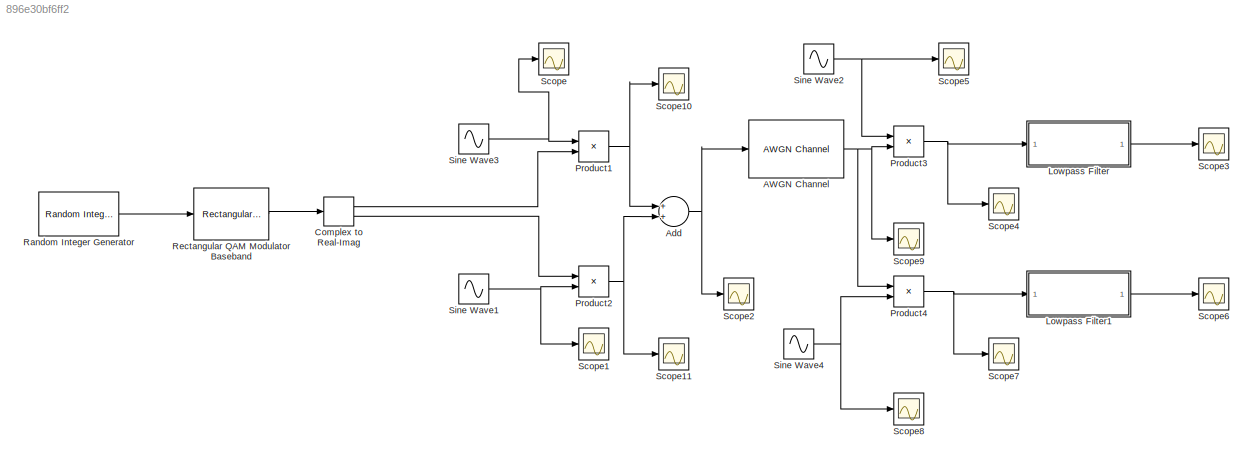
MODEL slx_896e30bf6ff2
KIND model
BLOCK [Reference] AWGN Channel  REF=commchan3/AWGN
Channel
  EbNodB = 10
  EsNodB = 10
  InputProcessing = Columns as channels (frame based)
  Ports = [1, 1]
  Ps = 1
  SNRdB = 10
  SourceBlock = commchan3/AWGN\nChannel
  SourceType = AWGN Channel
  Tsym = 1
  UserDataPersistent = on
  bitsPerSym = 1
  noiseMode = Variance from mask
  seed = 67
  variance = 0.001
BLOCK [Sum] Add
  InputSameDT = off
  OutDataTypeStr = Inherit: Inherit via internal rule
  Ports = [2, 1]
  SaturateOnIntegerOverflow = off
BLOCK [ComplexToRealImag] Complex to Real-Imag
  Ports = [1, 2]
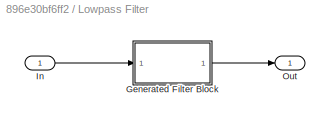
BLOCK [SubSystem] Lowpass Filter
  CopyFcn = fdesignblkfcn(gcbh, {'CopyFcn'});
  DialogController = fdesignblkfcn
  InitFcn = fdesignblkfcn(gcbh, {'InitFcn'});
  Ports = [1, 1]
  RequestExecContextInheritance = off
  UserDataPersistent = on
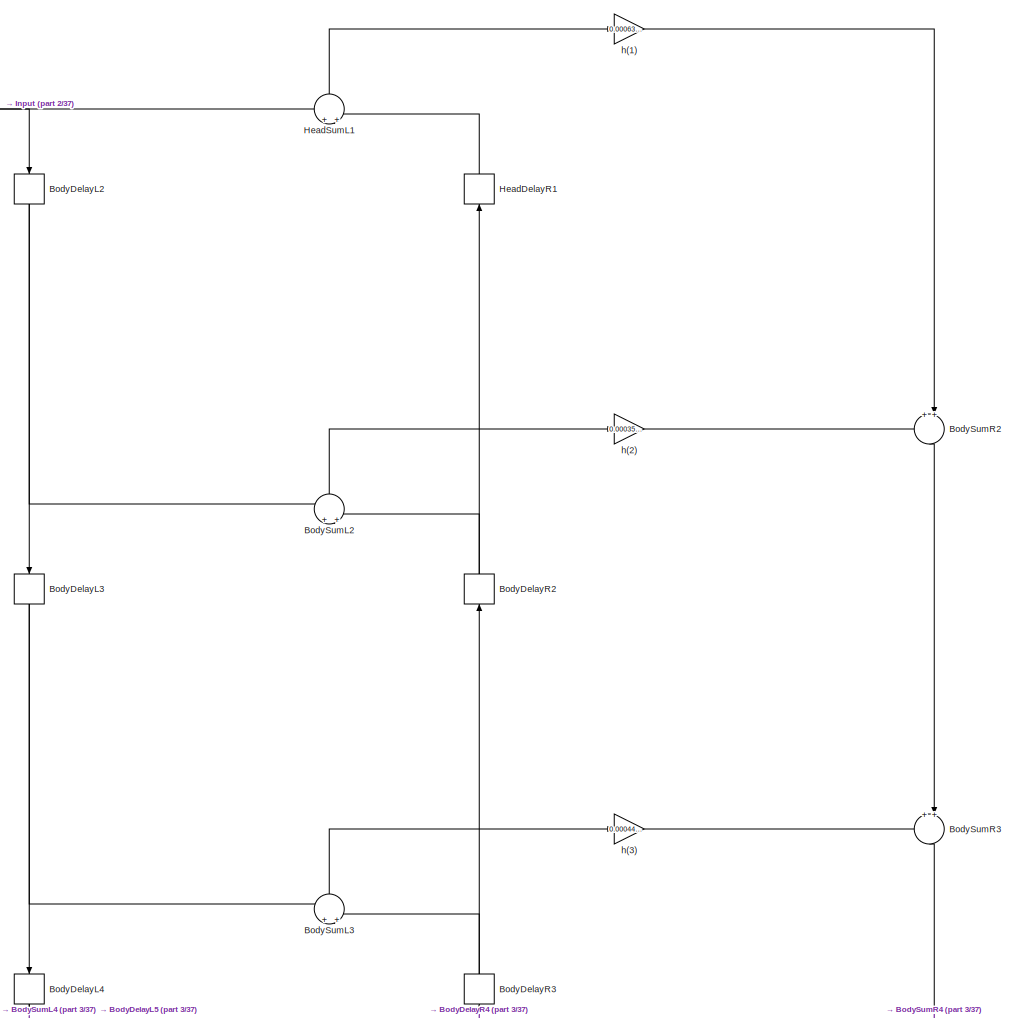
[diagram: Lowpass Filter/Generated Filter Block - part 1/37, top center region]
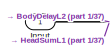
[diagram: Lowpass Filter/Generated Filter Block - part 2/37, top left region]
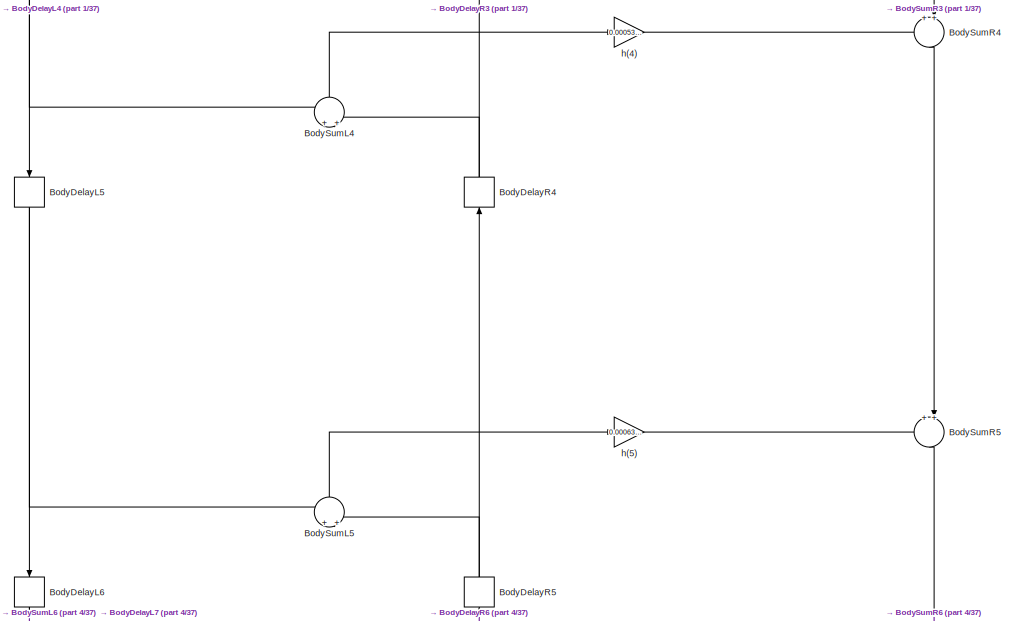
[diagram: Lowpass Filter/Generated Filter Block - part 3/37, top center region]
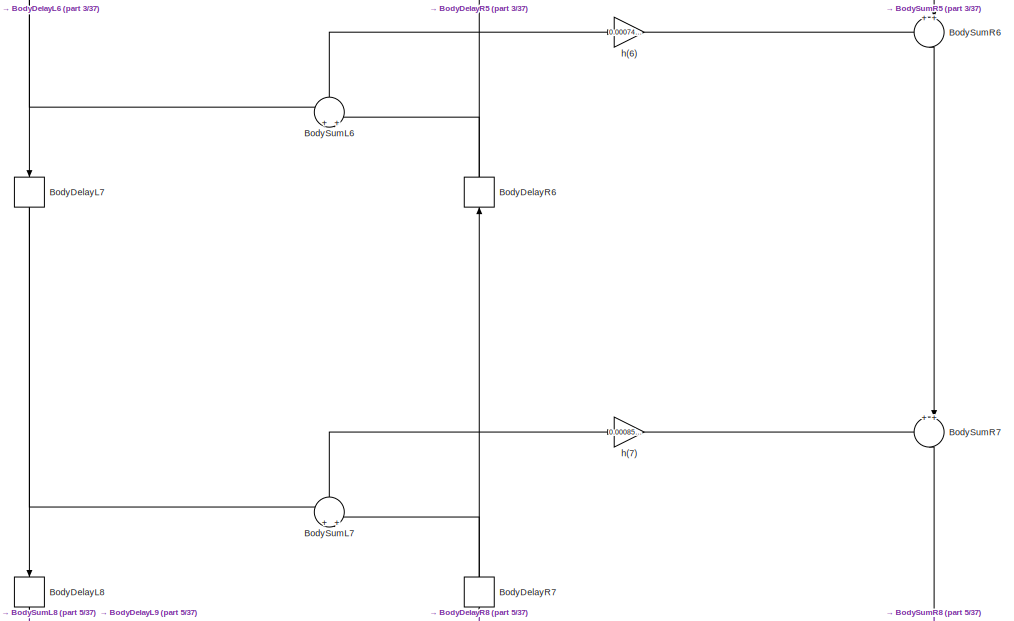
[diagram: Lowpass Filter/Generated Filter Block - part 4/37, top center region]
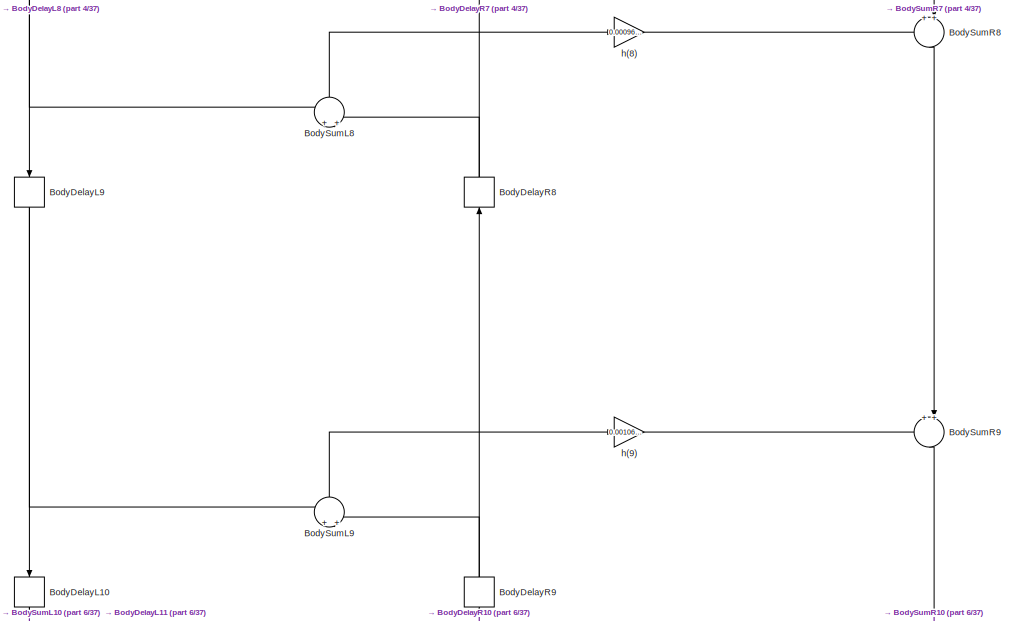
[diagram: Lowpass Filter/Generated Filter Block - part 5/37, top center region]
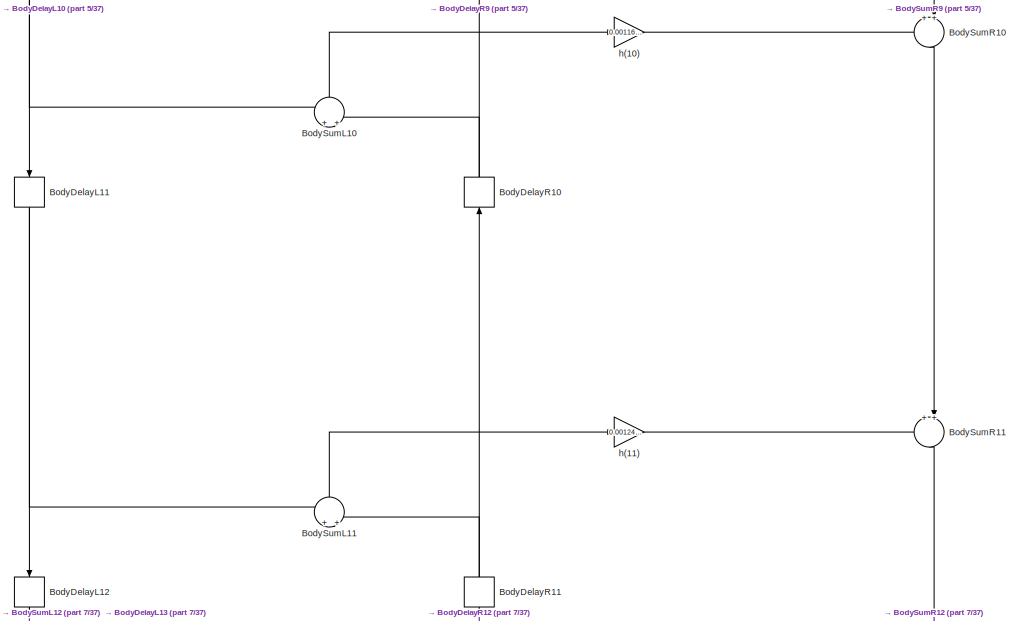
[diagram: Lowpass Filter/Generated Filter Block - part 6/37, top center region]
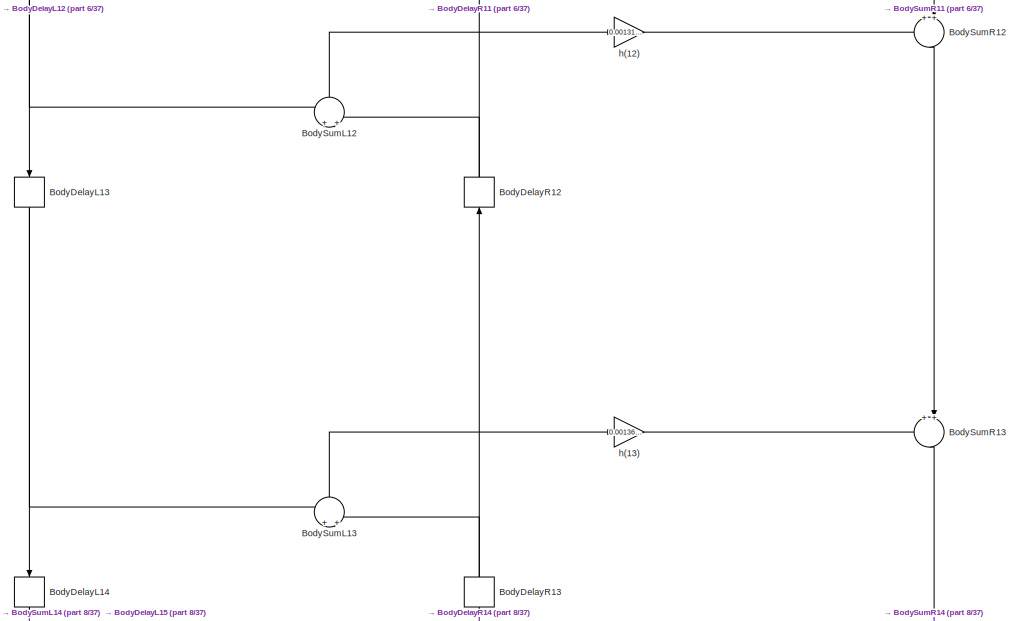
[diagram: Lowpass Filter/Generated Filter Block - part 7/37, top center region]
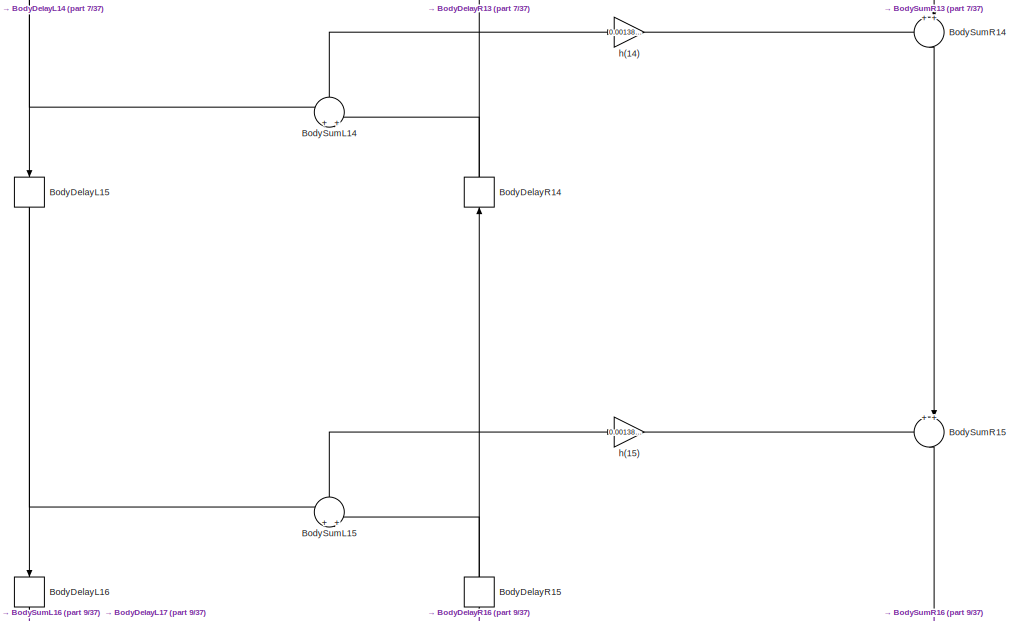
[diagram: Lowpass Filter/Generated Filter Block - part 8/37, top center region]
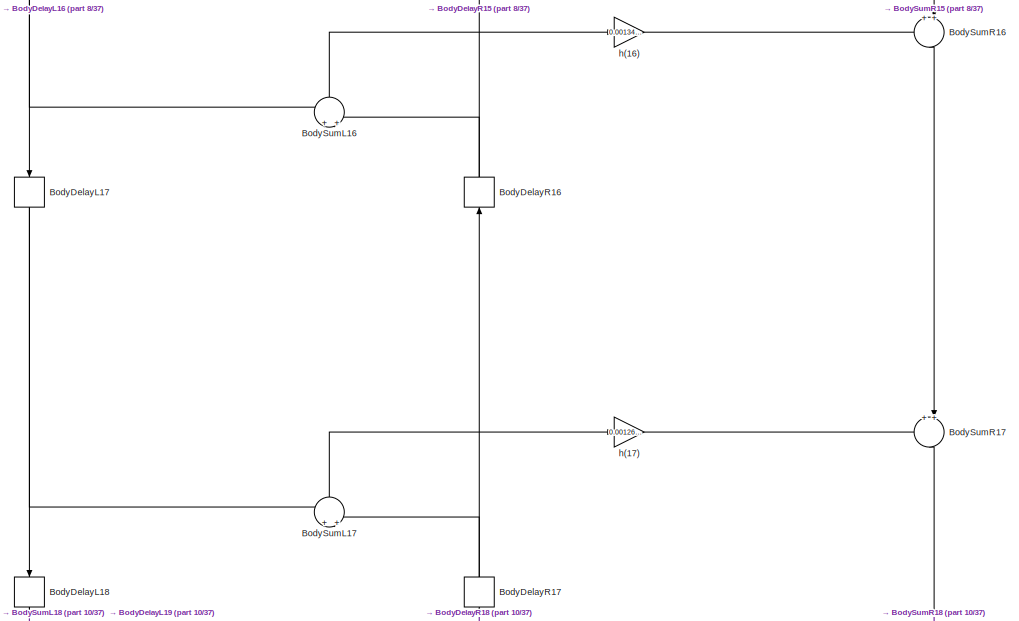
[diagram: Lowpass Filter/Generated Filter Block - part 9/37, top center region]
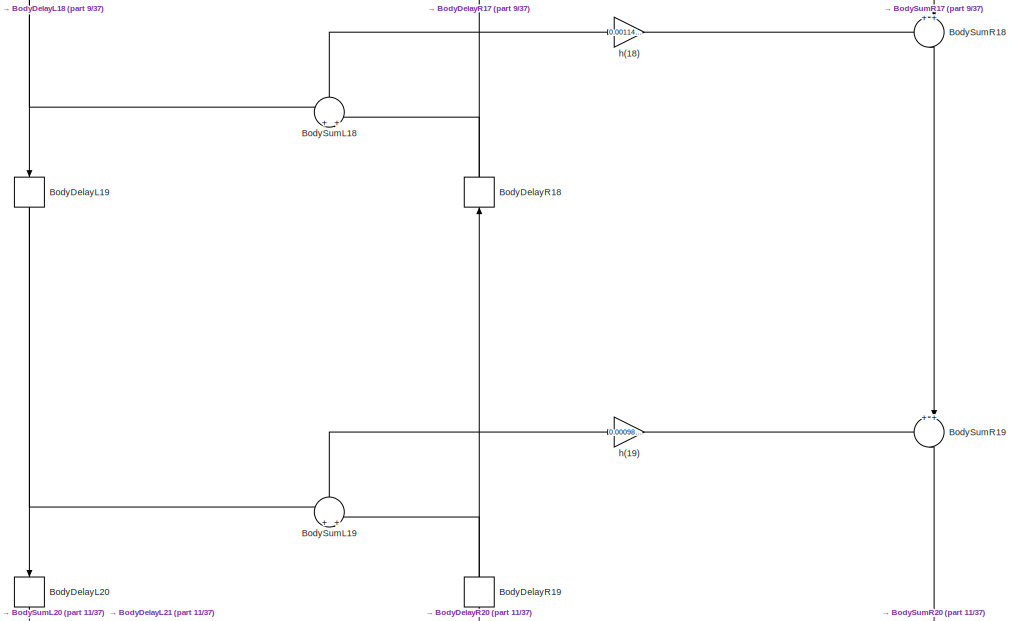
[diagram: Lowpass Filter/Generated Filter Block - part 10/37, top center region]
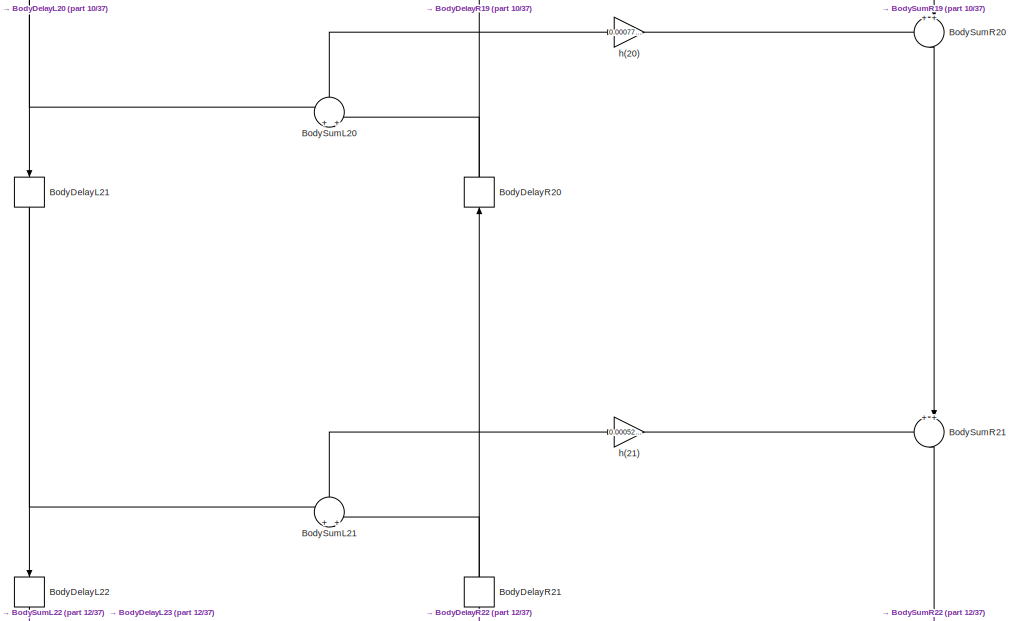
[diagram: Lowpass Filter/Generated Filter Block - part 11/37, top center region]
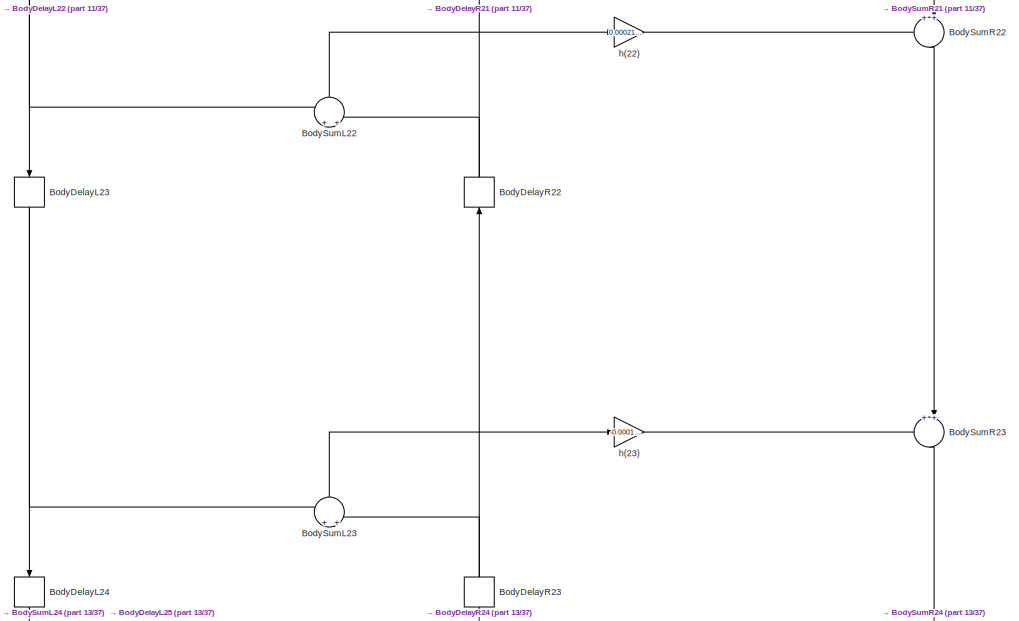
[diagram: Lowpass Filter/Generated Filter Block - part 12/37, top center region]
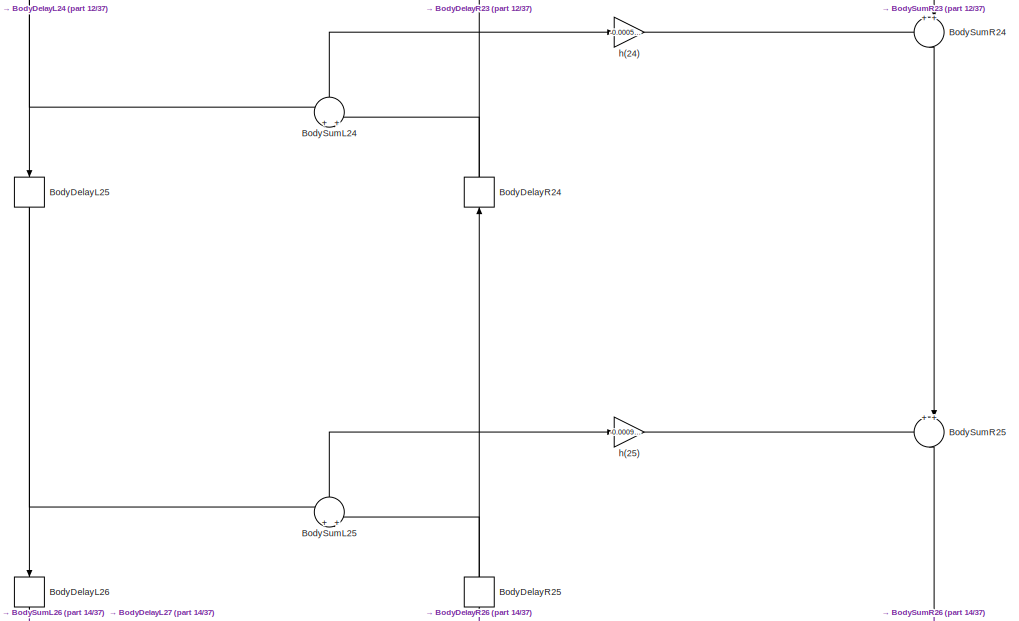
[diagram: Lowpass Filter/Generated Filter Block - part 13/37, top center region]
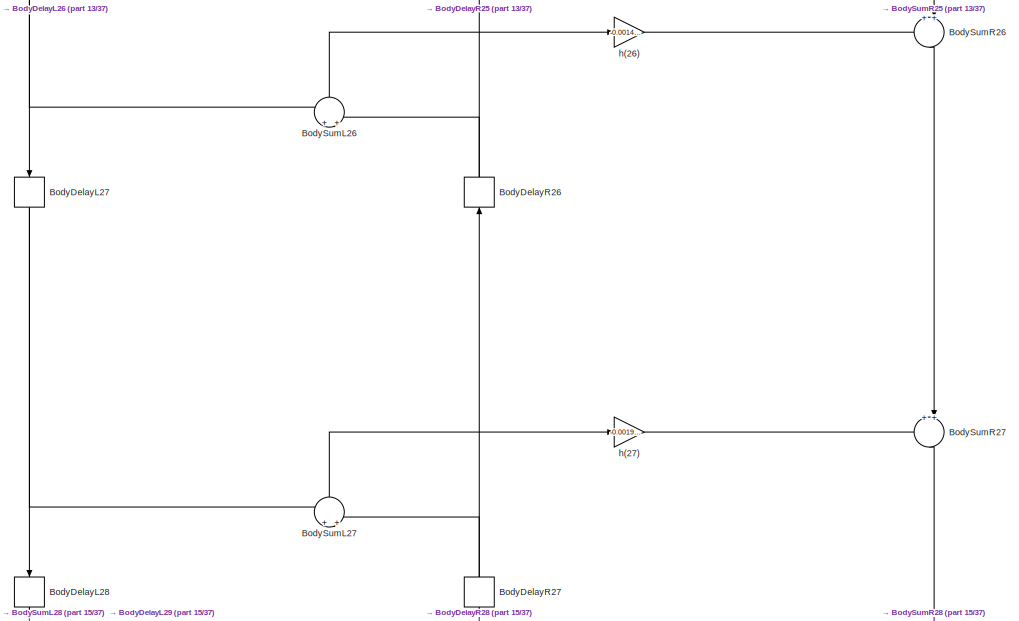
[diagram: Lowpass Filter/Generated Filter Block - part 14/37, central region]
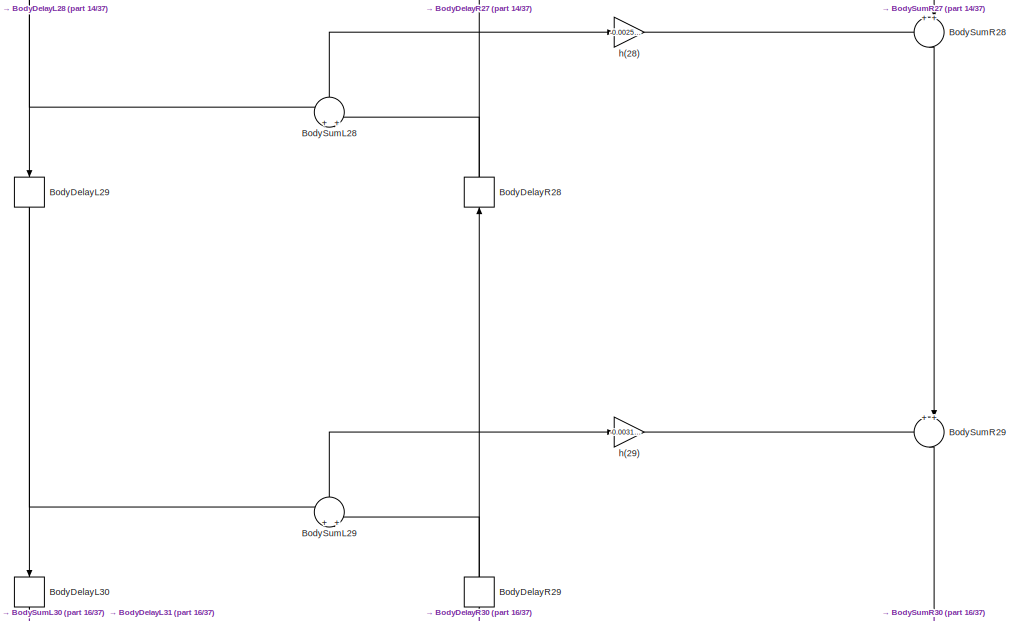
[diagram: Lowpass Filter/Generated Filter Block - part 15/37, central region]
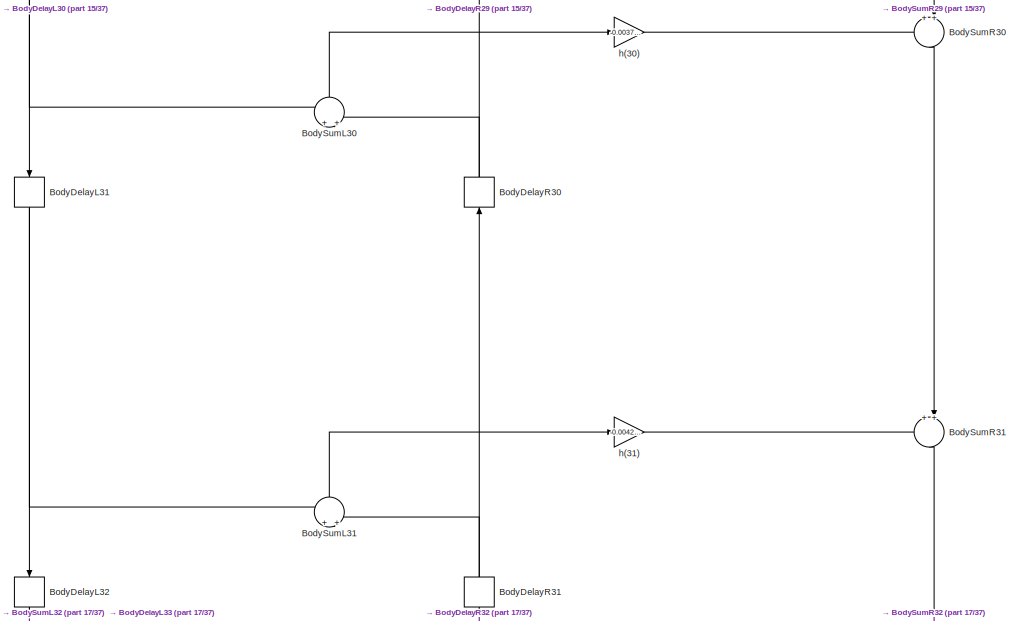
[diagram: Lowpass Filter/Generated Filter Block - part 16/37, central region]
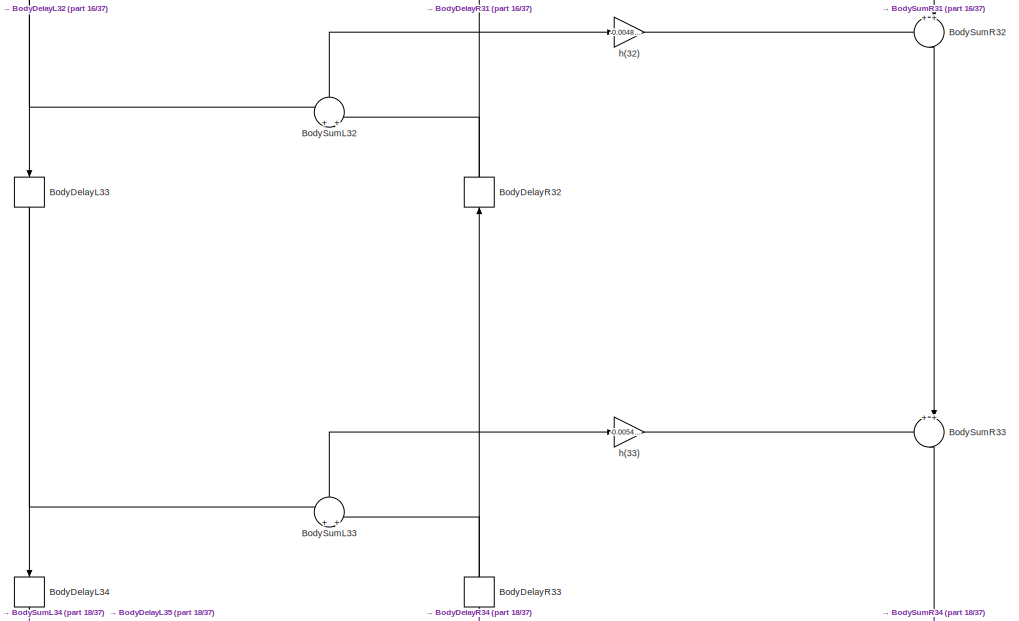
[diagram: Lowpass Filter/Generated Filter Block - part 17/37, central region]
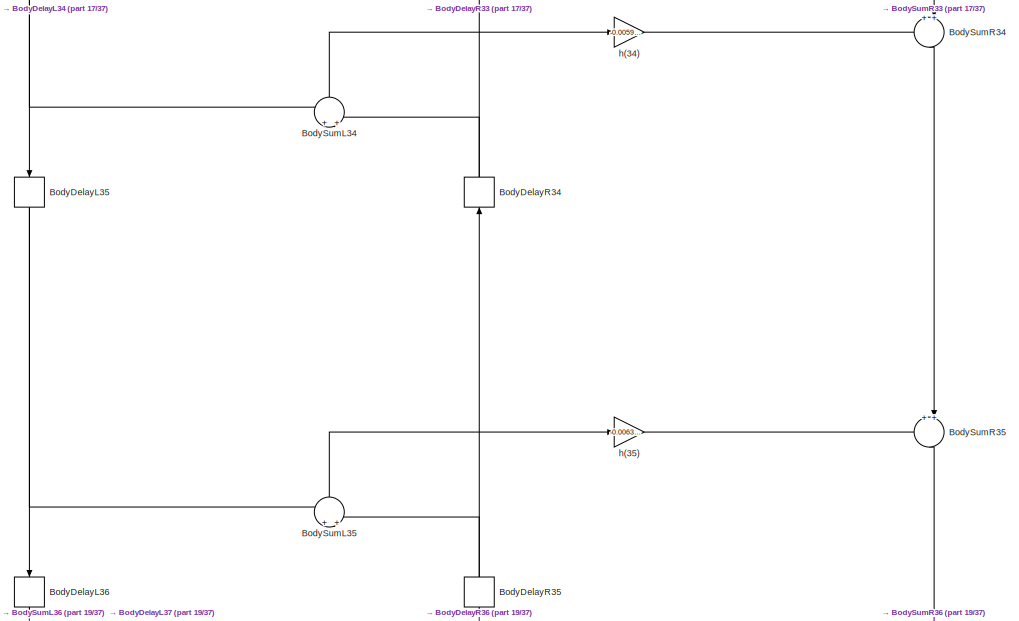
[diagram: Lowpass Filter/Generated Filter Block - part 18/37, central region]
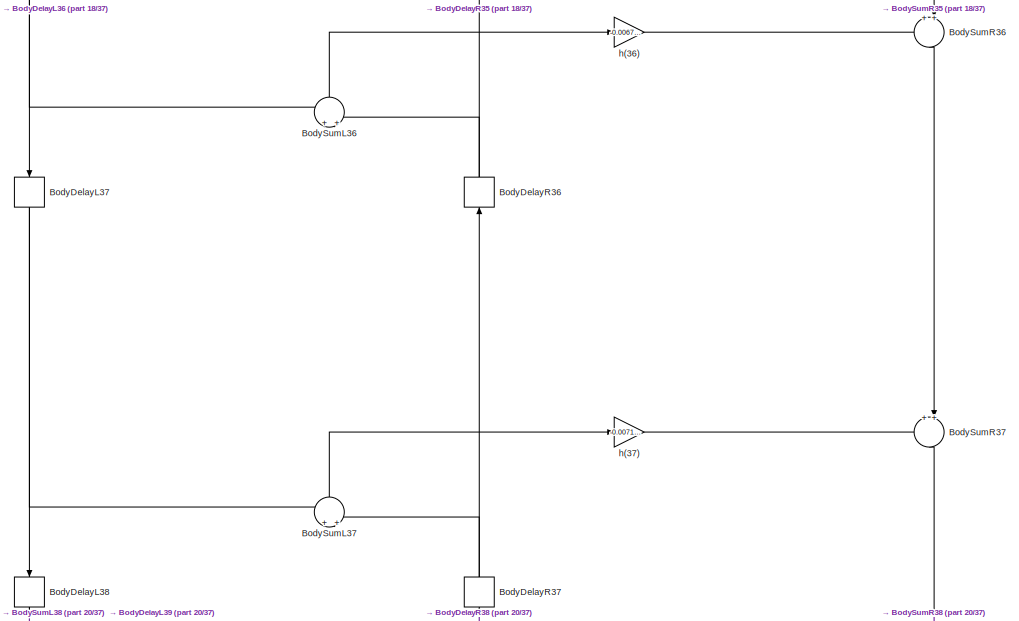
[diagram: Lowpass Filter/Generated Filter Block - part 19/37, central region]
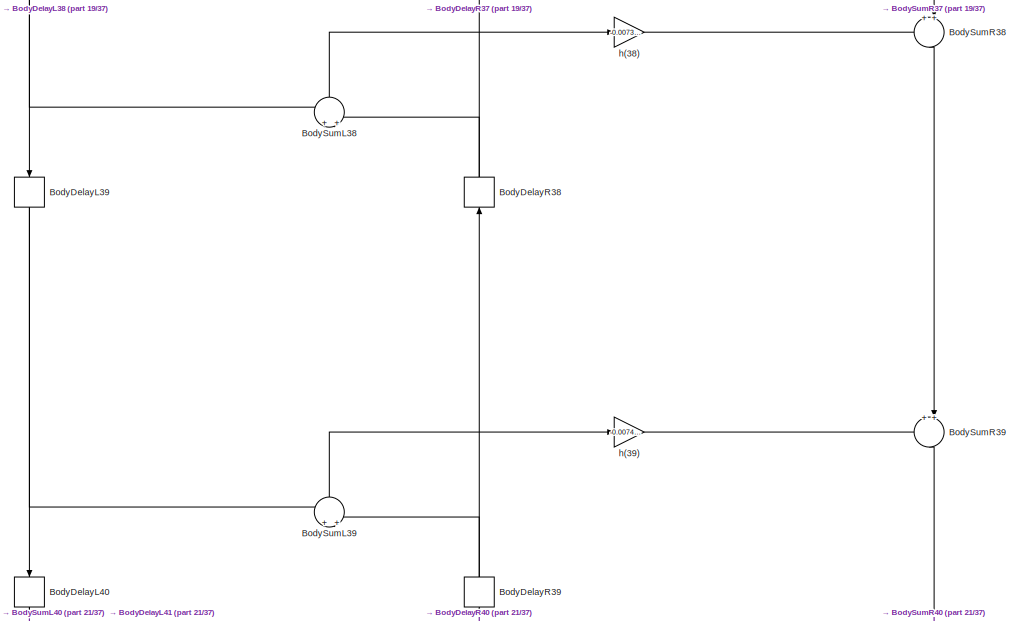
[diagram: Lowpass Filter/Generated Filter Block - part 20/37, central region]
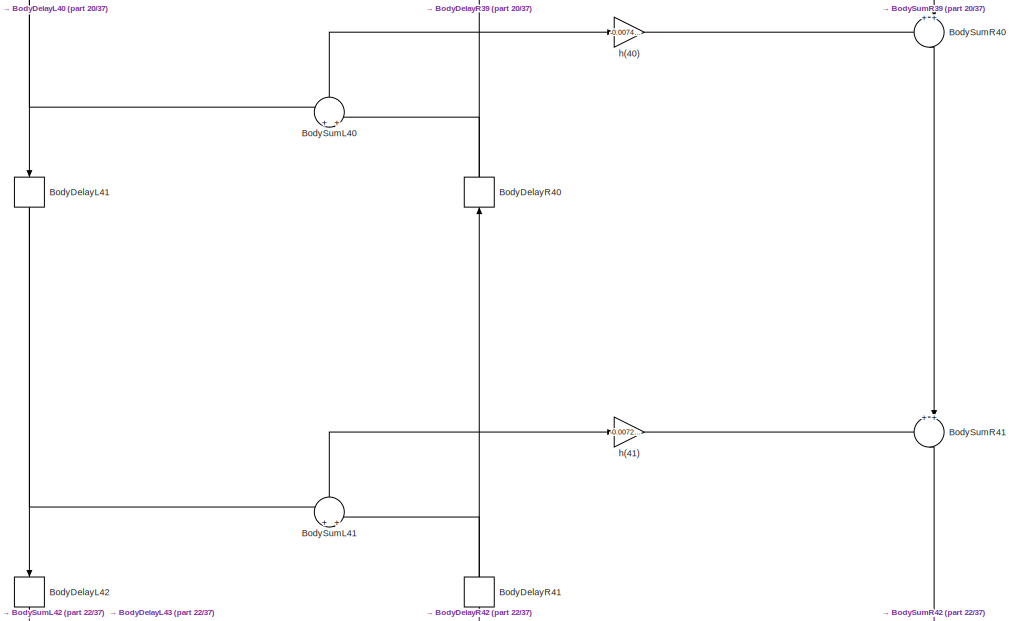
[diagram: Lowpass Filter/Generated Filter Block - part 21/37, central region]
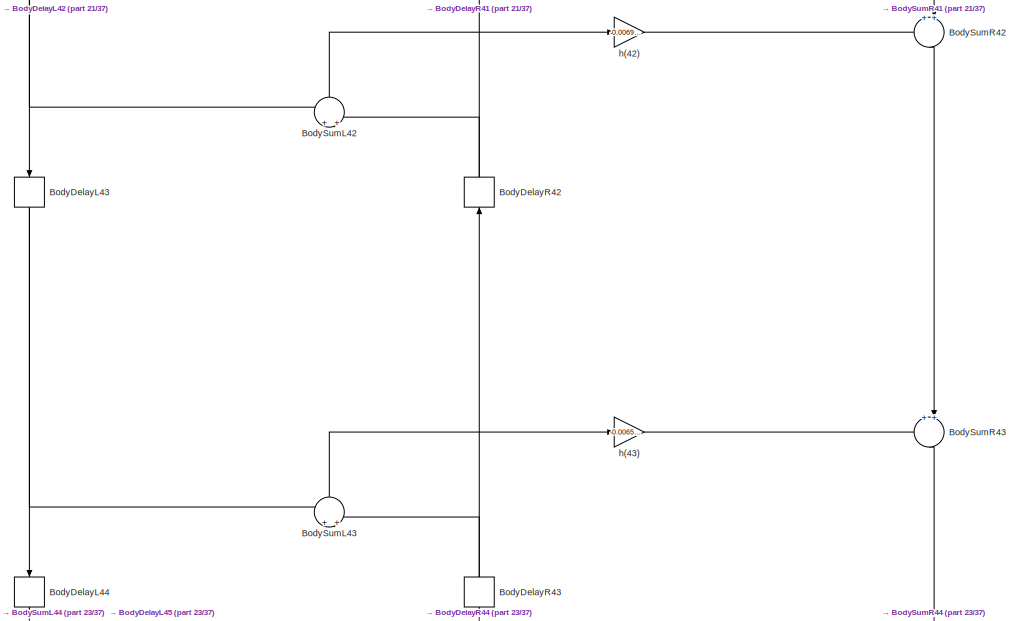
[diagram: Lowpass Filter/Generated Filter Block - part 22/37, central region]
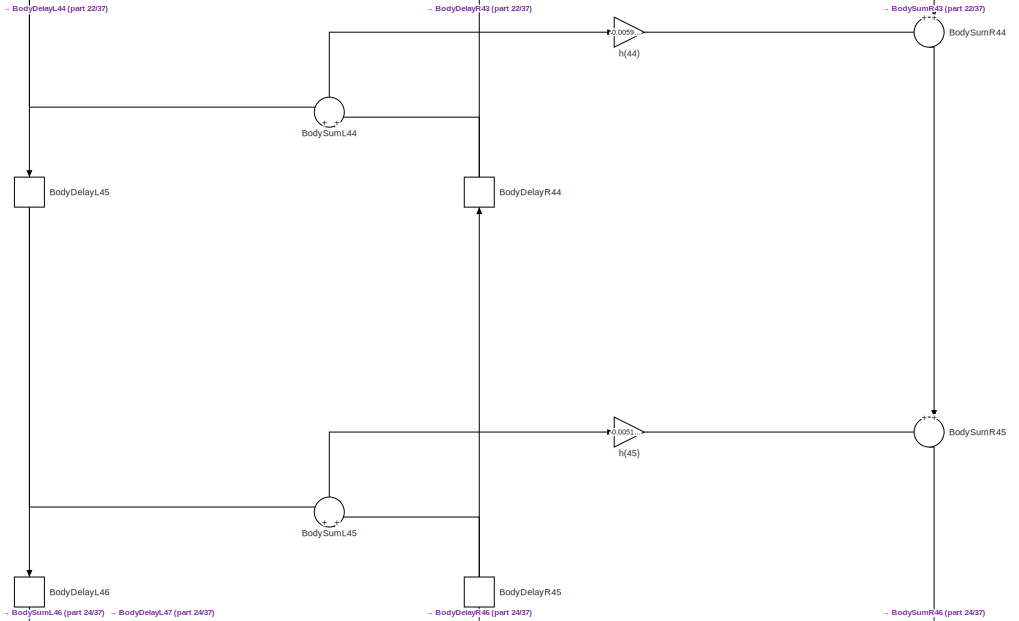
[diagram: Lowpass Filter/Generated Filter Block - part 23/37, central region]
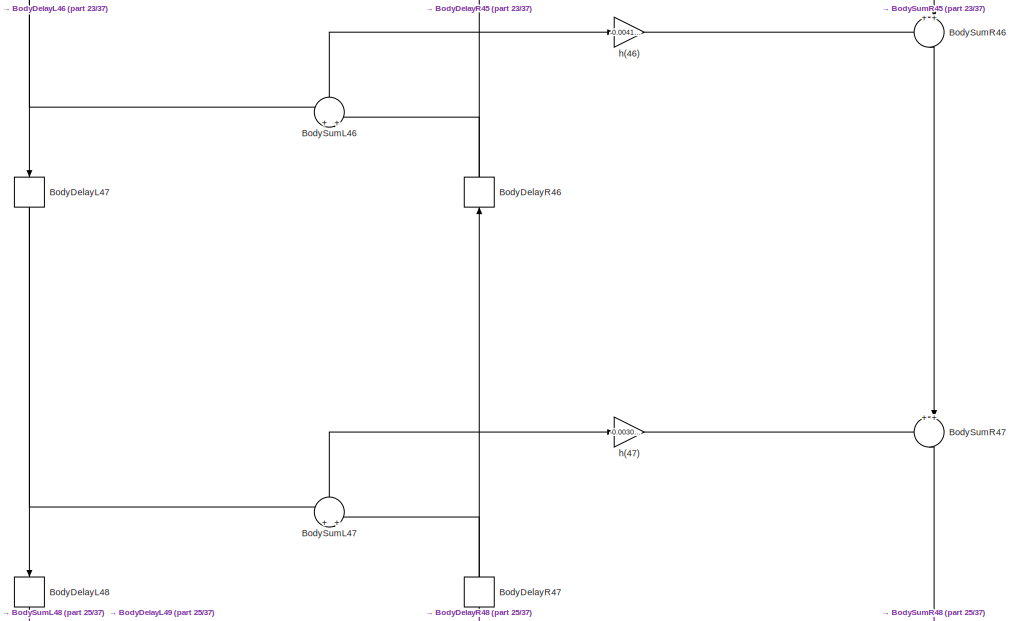
[diagram: Lowpass Filter/Generated Filter Block - part 24/37, central region]
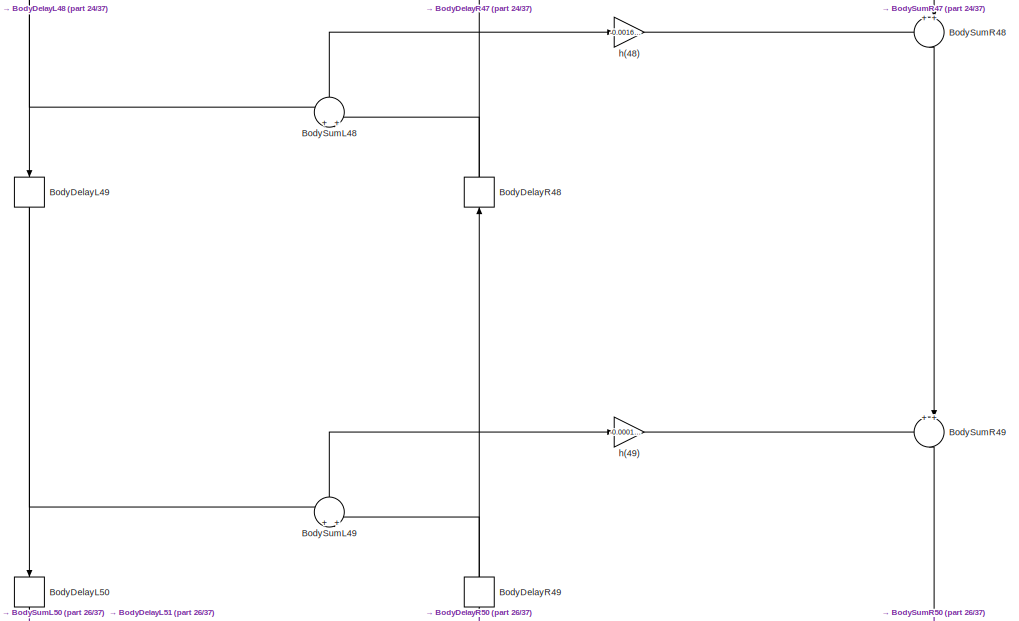
[diagram: Lowpass Filter/Generated Filter Block - part 25/37, bottom center region]
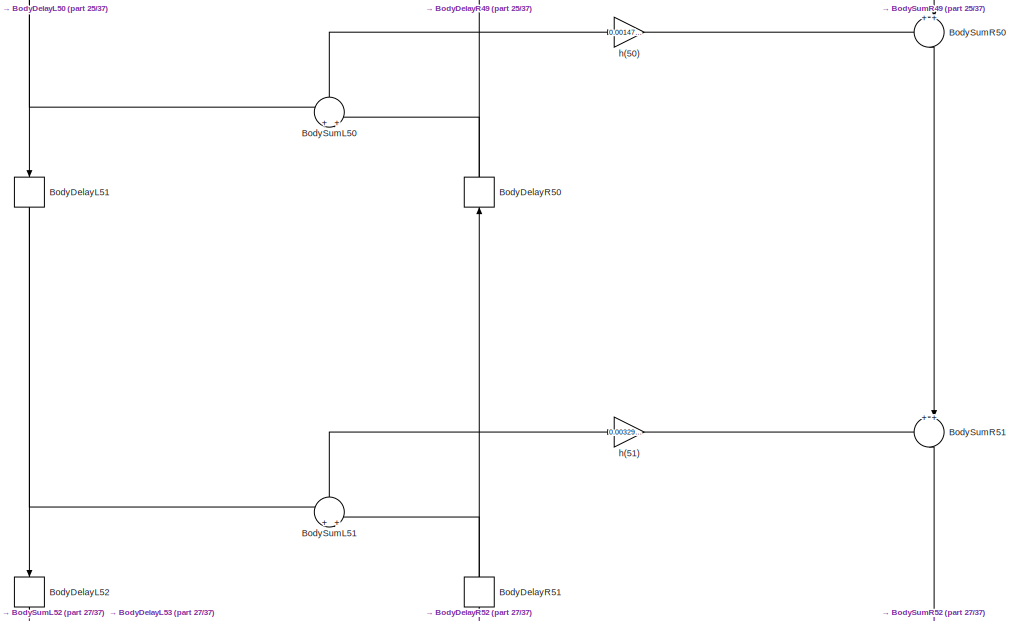
[diagram: Lowpass Filter/Generated Filter Block - part 26/37, bottom center region]
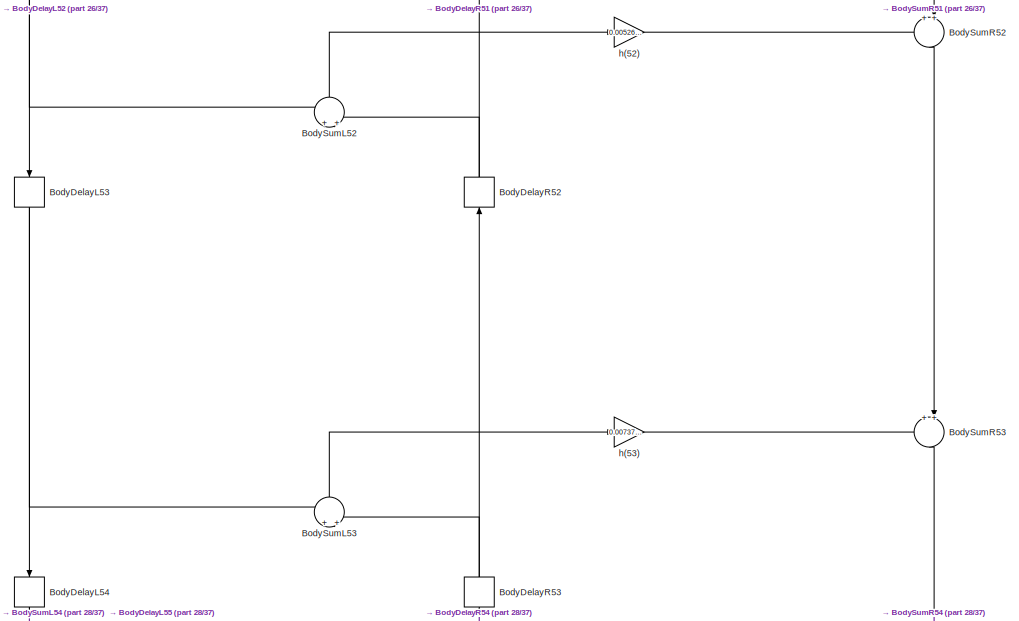
[diagram: Lowpass Filter/Generated Filter Block - part 27/37, bottom center region]
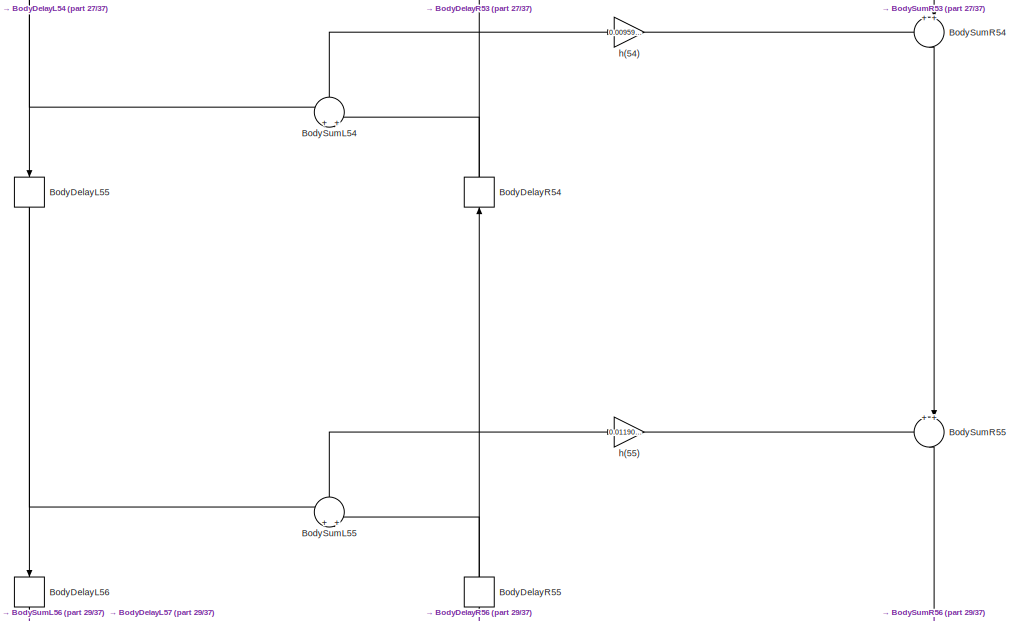
[diagram: Lowpass Filter/Generated Filter Block - part 28/37, bottom center region]
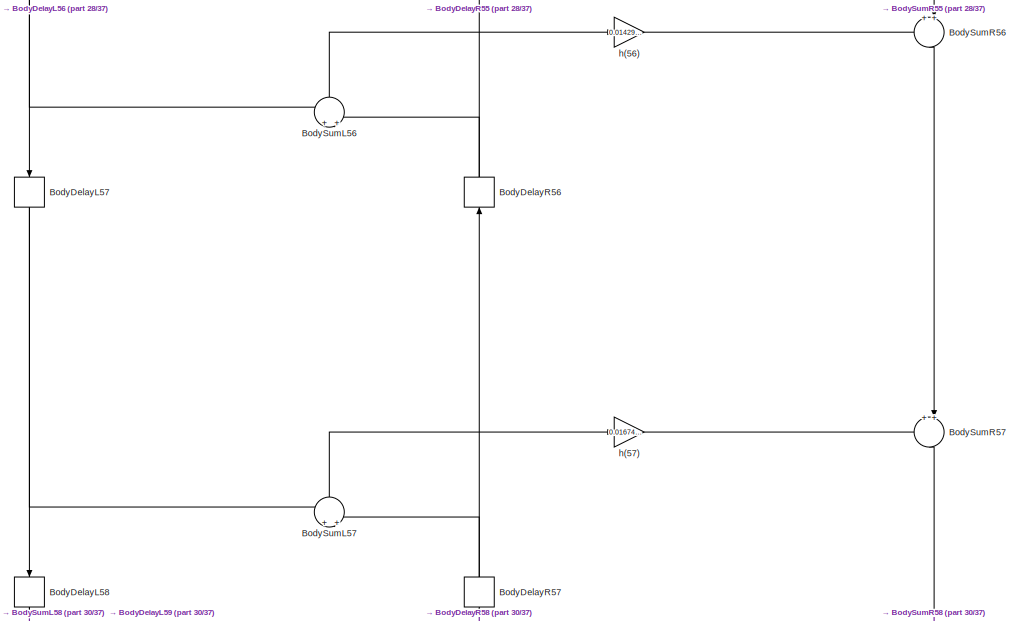
[diagram: Lowpass Filter/Generated Filter Block - part 29/37, bottom center region]
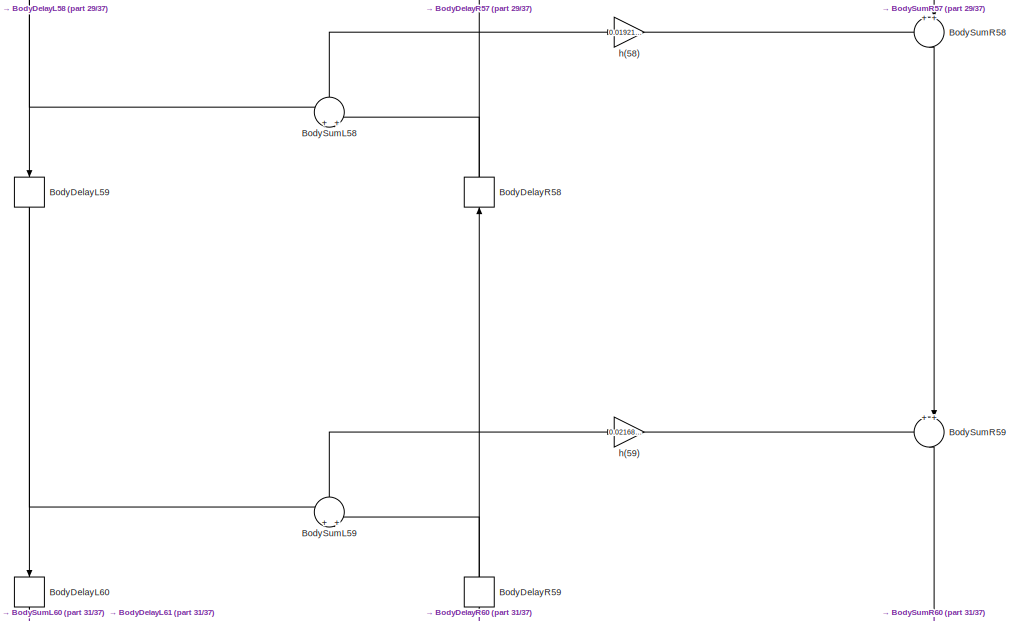
[diagram: Lowpass Filter/Generated Filter Block - part 30/37, bottom center region]
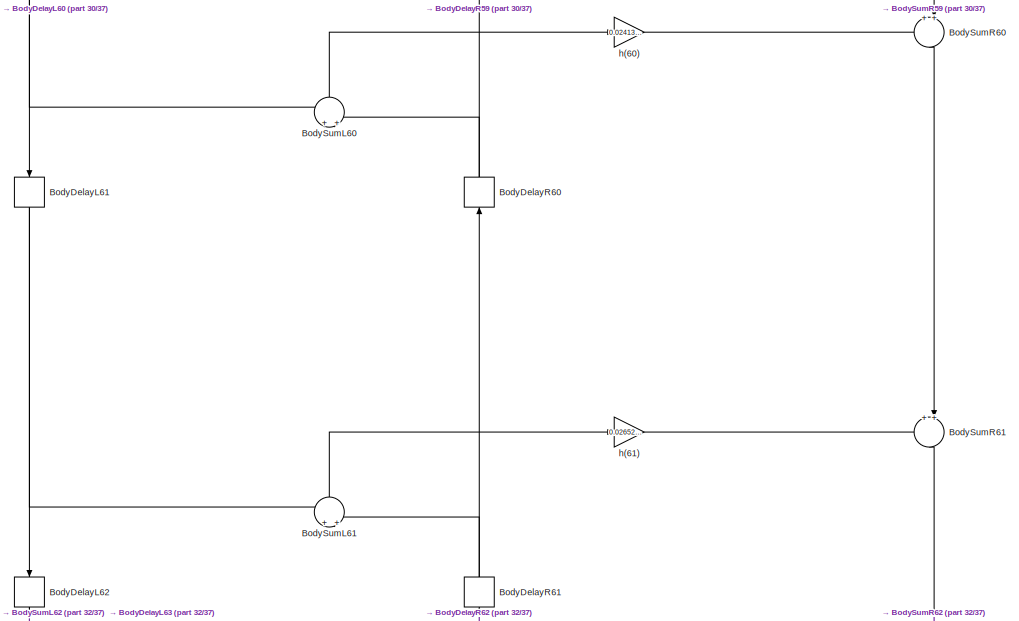
[diagram: Lowpass Filter/Generated Filter Block - part 31/37, bottom center region]
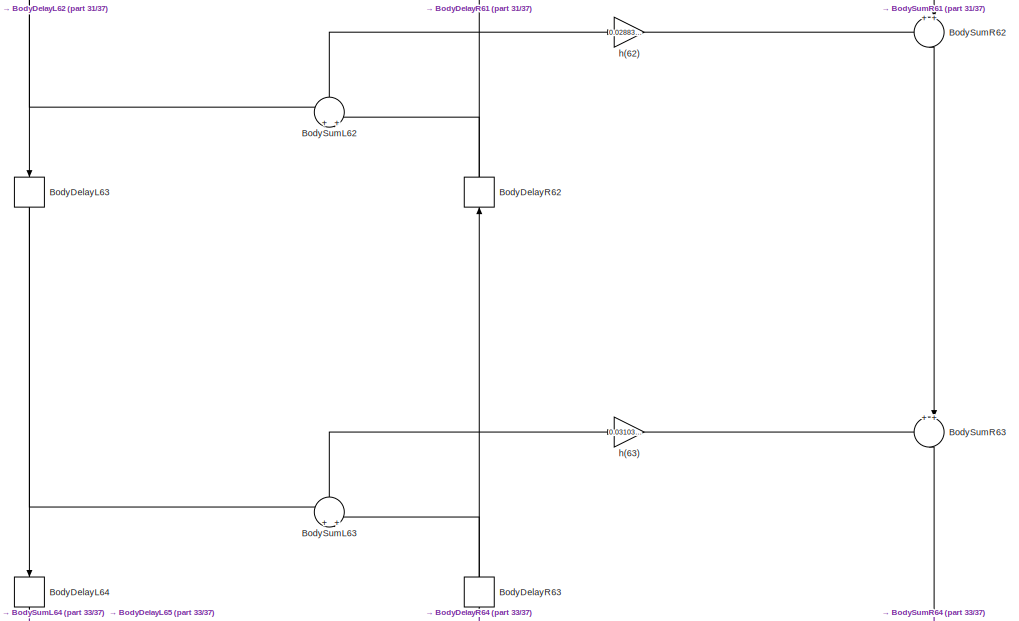
[diagram: Lowpass Filter/Generated Filter Block - part 32/37, bottom center region]
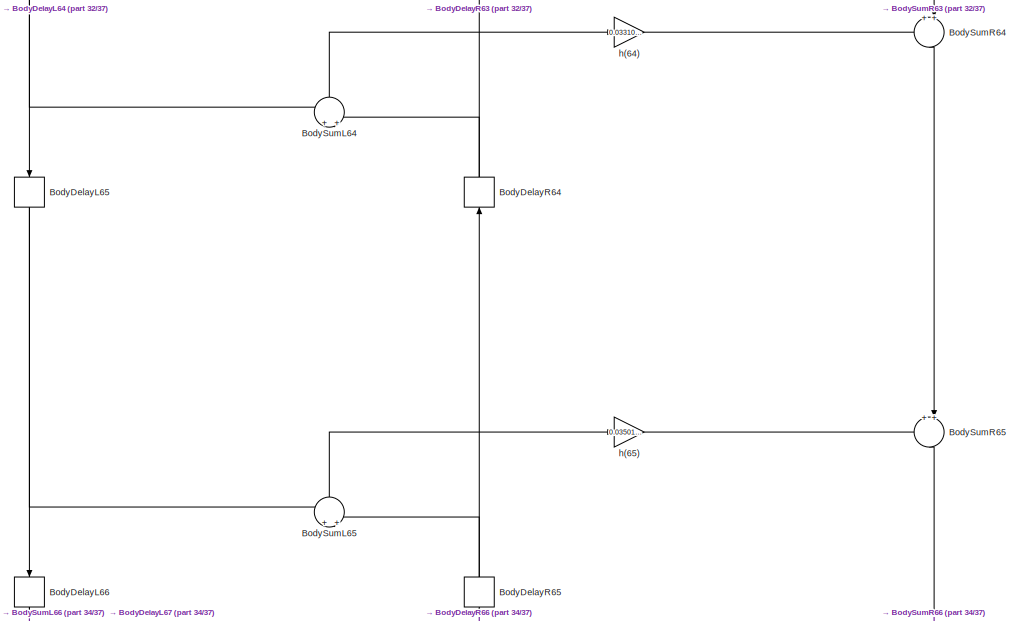
[diagram: Lowpass Filter/Generated Filter Block - part 33/37, bottom center region]
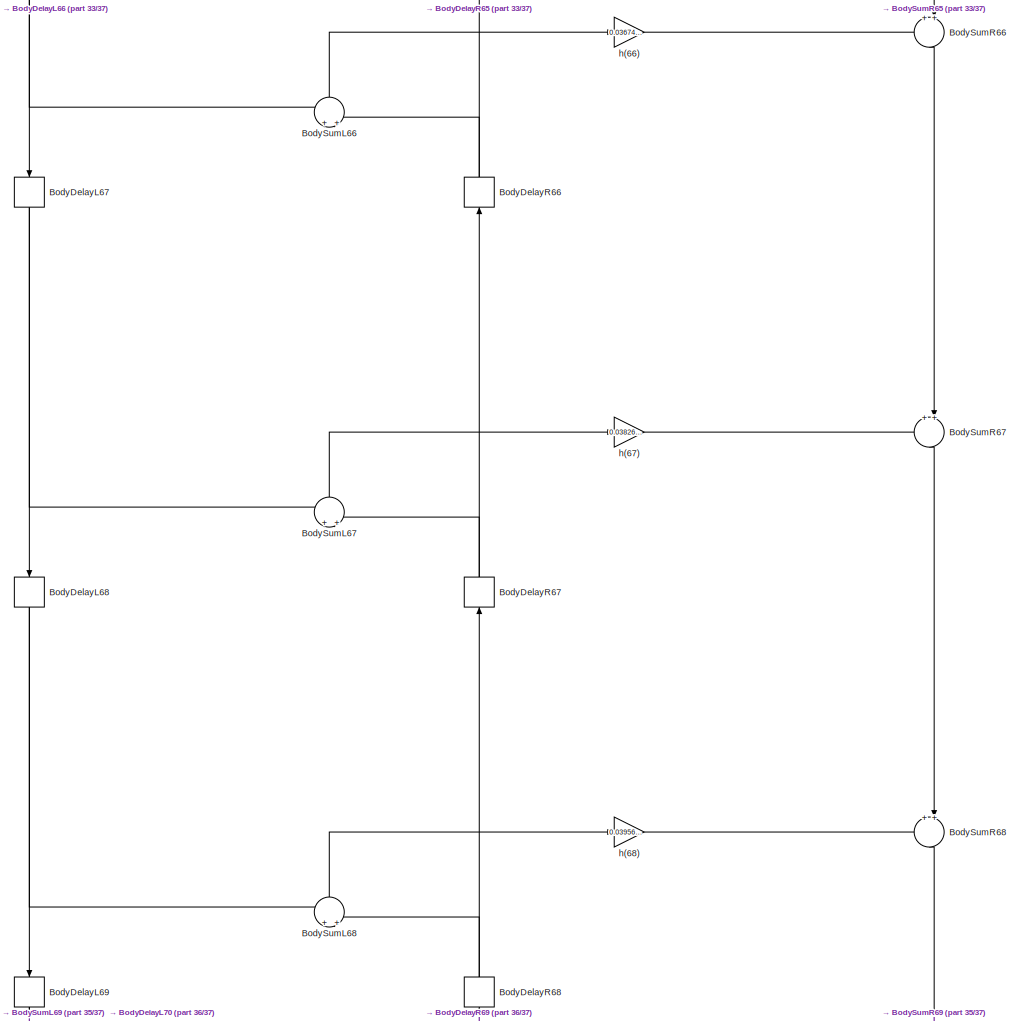
[diagram: Lowpass Filter/Generated Filter Block - part 34/37, bottom center region]
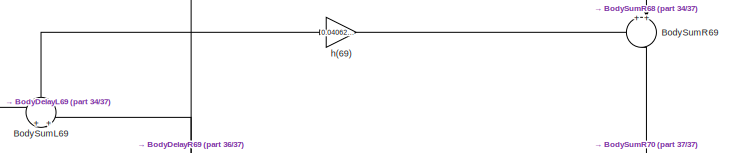
[diagram: Lowpass Filter/Generated Filter Block - part 35/37, bottom center region]
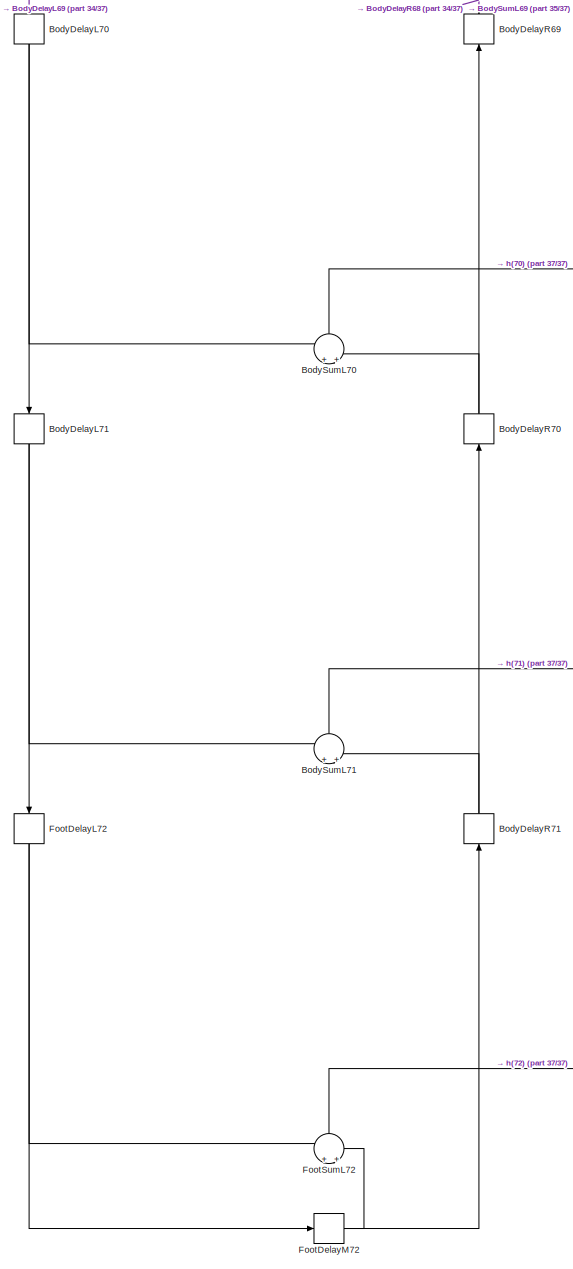
[diagram: Lowpass Filter/Generated Filter Block - part 36/37, bottom center region]
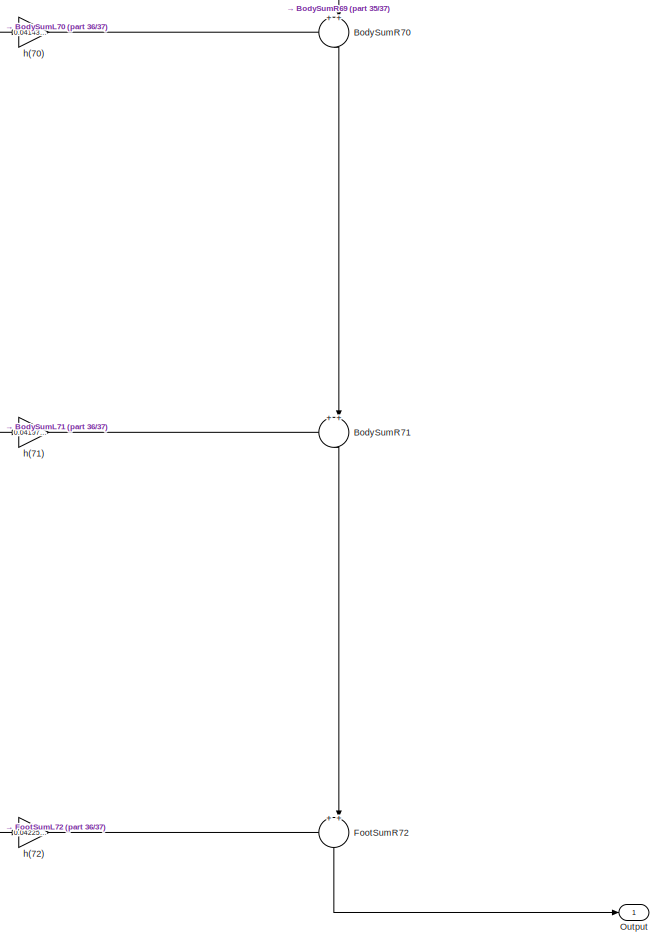
[diagram: Lowpass Filter/Generated Filter Block - part 37/37, bottom right region]
BLOCK [SubSystem] Lowpass Filter/Generated Filter Block
  ErrorFcn = dspFilterRealizedInBasicElemsAlgLoopErrFcnCallback
  Ports = [1, 1]
  RequestExecContextInheritance = off
  Tag = FilterWizardSubSystem
  UserDataPersistent = on
BLOCK [Delay] Lowpass Filter/Generated Filter Block/BodyDelayL10
  DelayLength = 1
  InitialCondition = 0
  InputPortMap = u0
  InputProcessing = Columns as channels (frame based)
  Ports = [1, 1]
BLOCK [Delay] Lowpass Filter/Generated Filter Block/BodyDelayL11
  DelayLength = 1
  InitialCondition = 0
  InputPortMap = u0
  InputProcessing = Columns as channels (frame based)
  Ports = [1, 1]
BLOCK [Delay] Lowpass Filter/Generated Filter Block/BodyDelayL12
  DelayLength = 1
  InitialCondition = 0
  InputPortMap = u0
  InputProcessing = Columns as channels (frame based)
  Ports = [1, 1]
BLOCK [Delay] Lowpass Filter/Generated Filter Block/BodyDelayL13
  DelayLength = 1
  InitialCondition = 0
  InputPortMap = u0
  InputProcessing = Columns as channels (frame based)
  Ports = [1, 1]
BLOCK [Delay] Lowpass Filter/Generated Filter Block/BodyDelayL14
  DelayLength = 1
  InitialCondition = 0
  InputPortMap = u0
  InputProcessing = Columns as channels (frame based)
  Ports = [1, 1]
BLOCK [Delay] Lowpass Filter/Generated Filter Block/BodyDelayL15
  DelayLength = 1
  InitialCondition = 0
  InputPortMap = u0
  InputProcessing = Columns as channels (frame based)
  Ports = [1, 1]
BLOCK [Delay] Lowpass Filter/Generated Filter Block/BodyDelayL16
  DelayLength = 1
  InitialCondition = 0
  InputPortMap = u0
  InputProcessing = Columns as channels (frame based)
  Ports = [1, 1]
BLOCK [Delay] Lowpass Filter/Generated Filter Block/BodyDelayL17
  DelayLength = 1
  InitialCondition = 0
  InputPortMap = u0
  InputProcessing = Columns as channels (frame based)
  Ports = [1, 1]
BLOCK [Delay] Lowpass Filter/Generated Filter Block/BodyDelayL18
  DelayLength = 1
  InitialCondition = 0
  InputPortMap = u0
  InputProcessing = Columns as channels (frame based)
  Ports = [1, 1]
BLOCK [Delay] Lowpass Filter/Generated Filter Block/BodyDelayL19
  DelayLength = 1
  InitialCondition = 0
  InputPortMap = u0
  InputProcessing = Columns as channels (frame based)
  Ports = [1, 1]
BLOCK [Delay] Lowpass Filter/Generated Filter Block/BodyDelayL2
  DelayLength = 1
  InitialCondition = 0
  InputPortMap = u0
  InputProcessing = Columns as channels (frame based)
  Ports = [1, 1]
BLOCK [Delay] Lowpass Filter/Generated Filter Block/BodyDelayL20
  DelayLength = 1
  InitialCondition = 0
  InputPortMap = u0
  InputProcessing = Columns as channels (frame based)
  Ports = [1, 1]
BLOCK [Delay] Lowpass Filter/Generated Filter Block/BodyDelayL21
  DelayLength = 1
  InitialCondition = 0
  InputPortMap = u0
  InputProcessing = Columns as channels (frame based)
  Ports = [1, 1]
BLOCK [Delay] Lowpass Filter/Generated Filter Block/BodyDelayL22
  DelayLength = 1
  InitialCondition = 0
  InputPortMap = u0
  InputProcessing = Columns as channels (frame based)
  Ports = [1, 1]
BLOCK [Delay] Lowpass Filter/Generated Filter Block/BodyDelayL23
  DelayLength = 1
  InitialCondition = 0
  InputPortMap = u0
  InputProcessing = Columns as channels (frame based)
  Ports = [1, 1]
BLOCK [Delay] Lowpass Filter/Generated Filter Block/BodyDelayL24
  DelayLength = 1
  InitialCondition = 0
  InputPortMap = u0
  InputProcessing = Columns as channels (frame based)
  Ports = [1, 1]
BLOCK [Delay] Lowpass Filter/Generated Filter Block/BodyDelayL25
  DelayLength = 1
  InitialCondition = 0
  InputPortMap = u0
  InputProcessing = Columns as channels (frame based)
  Ports = [1, 1]
BLOCK [Delay] Lowpass Filter/Generated Filter Block/BodyDelayL26
  DelayLength = 1
  InitialCondition = 0
  InputPortMap = u0
  InputProcessing = Columns as channels (frame based)
  Ports = [1, 1]
BLOCK [Delay] Lowpass Filter/Generated Filter Block/BodyDelayL27
  DelayLength = 1
  InitialCondition = 0
  InputPortMap = u0
  InputProcessing = Columns as channels (frame based)
  Ports = [1, 1]
BLOCK [Delay] Lowpass Filter/Generated Filter Block/BodyDelayL28
  DelayLength = 1
  InitialCondition = 0
  InputPortMap = u0
  InputProcessing = Columns as channels (frame based)
  Ports = [1, 1]
BLOCK [Delay] Lowpass Filter/Generated Filter Block/BodyDelayL29
  DelayLength = 1
  InitialCondition = 0
  InputPortMap = u0
  InputProcessing = Columns as channels (frame based)
  Ports = [1, 1]
BLOCK [Delay] Lowpass Filter/Generated Filter Block/BodyDelayL3
  DelayLength = 1
  InitialCondition = 0
  InputPortMap = u0
  InputProcessing = Columns as channels (frame based)
  Ports = [1, 1]
BLOCK [Delay] Lowpass Filter/Generated Filter Block/BodyDelayL30
  DelayLength = 1
  InitialCondition = 0
  InputPortMap = u0
  InputProcessing = Columns as channels (frame based)
  Ports = [1, 1]
BLOCK [Delay] Lowpass Filter/Generated Filter Block/BodyDelayL31
  DelayLength = 1
  InitialCondition = 0
  InputPortMap = u0
  InputProcessing = Columns as channels (frame based)
  Ports = [1, 1]
BLOCK [Delay] Lowpass Filter/Generated Filter Block/BodyDelayL32
  DelayLength = 1
  InitialCondition = 0
  InputPortMap = u0
  InputProcessing = Columns as channels (frame based)
  Ports = [1, 1]
BLOCK [Delay] Lowpass Filter/Generated Filter Block/BodyDelayL33
  DelayLength = 1
  InitialCondition = 0
  InputPortMap = u0
  InputProcessing = Columns as channels (frame based)
  Ports = [1, 1]
BLOCK [Delay] Lowpass Filter/Generated Filter Block/BodyDelayL34
  DelayLength = 1
  InitialCondition = 0
  InputPortMap = u0
  InputProcessing = Columns as channels (frame based)
  Ports = [1, 1]
BLOCK [Delay] Lowpass Filter/Generated Filter Block/BodyDelayL35
  DelayLength = 1
  InitialCondition = 0
  InputPortMap = u0
  InputProcessing = Columns as channels (frame based)
  Ports = [1, 1]
BLOCK [Delay] Lowpass Filter/Generated Filter Block/BodyDelayL36
  DelayLength = 1
  InitialCondition = 0
  InputPortMap = u0
  InputProcessing = Columns as channels (frame based)
  Ports = [1, 1]
BLOCK [Delay] Lowpass Filter/Generated Filter Block/BodyDelayL37
  DelayLength = 1
  InitialCondition = 0
  InputPortMap = u0
  InputProcessing = Columns as channels (frame based)
  Ports = [1, 1]
BLOCK [Delay] Lowpass Filter/Generated Filter Block/BodyDelayL38
  DelayLength = 1
  InitialCondition = 0
  InputPortMap = u0
  InputProcessing = Columns as channels (frame based)
  Ports = [1, 1]
BLOCK [Delay] Lowpass Filter/Generated Filter Block/BodyDelayL39
  DelayLength = 1
  InitialCondition = 0
  InputPortMap = u0
  InputProcessing = Columns as channels (frame based)
  Ports = [1, 1]
BLOCK [Delay] Lowpass Filter/Generated Filter Block/BodyDelayL4
  DelayLength = 1
  InitialCondition = 0
  InputPortMap = u0
  InputProcessing = Columns as channels (frame based)
  Ports = [1, 1]
BLOCK [Delay] Lowpass Filter/Generated Filter Block/BodyDelayL40
  DelayLength = 1
  InitialCondition = 0
  InputPortMap = u0
  InputProcessing = Columns as channels (frame based)
  Ports = [1, 1]
BLOCK [Delay] Lowpass Filter/Generated Filter Block/BodyDelayL41
  DelayLength = 1
  InitialCondition = 0
  InputPortMap = u0
  InputProcessing = Columns as channels (frame based)
  Ports = [1, 1]
BLOCK [Delay] Lowpass Filter/Generated Filter Block/BodyDelayL42
  DelayLength = 1
  InitialCondition = 0
  InputPortMap = u0
  InputProcessing = Columns as channels (frame based)
  Ports = [1, 1]
BLOCK [Delay] Lowpass Filter/Generated Filter Block/BodyDelayL43
  DelayLength = 1
  InitialCondition = 0
  InputPortMap = u0
  InputProcessing = Columns as channels (frame based)
  Ports = [1, 1]
BLOCK [Delay] Lowpass Filter/Generated Filter Block/BodyDelayL44
  DelayLength = 1
  InitialCondition = 0
  InputPortMap = u0
  InputProcessing = Columns as channels (frame based)
  Ports = [1, 1]
BLOCK [Delay] Lowpass Filter/Generated Filter Block/BodyDelayL45
  DelayLength = 1
  InitialCondition = 0
  InputPortMap = u0
  InputProcessing = Columns as channels (frame based)
  Ports = [1, 1]
BLOCK [Delay] Lowpass Filter/Generated Filter Block/BodyDelayL46
  DelayLength = 1
  InitialCondition = 0
  InputPortMap = u0
  InputProcessing = Columns as channels (frame based)
  Ports = [1, 1]
BLOCK [Delay] Lowpass Filter/Generated Filter Block/BodyDelayL47
  DelayLength = 1
  InitialCondition = 0
  InputPortMap = u0
  InputProcessing = Columns as channels (frame based)
  Ports = [1, 1]
BLOCK [Delay] Lowpass Filter/Generated Filter Block/BodyDelayL48
  DelayLength = 1
  InitialCondition = 0
  InputPortMap = u0
  InputProcessing = Columns as channels (frame based)
  Ports = [1, 1]
BLOCK [Delay] Lowpass Filter/Generated Filter Block/BodyDelayL49
  DelayLength = 1
  InitialCondition = 0
  InputPortMap = u0
  InputProcessing = Columns as channels (frame based)
  Ports = [1, 1]
BLOCK [Delay] Lowpass Filter/Generated Filter Block/BodyDelayL5
  DelayLength = 1
  InitialCondition = 0
  InputPortMap = u0
  InputProcessing = Columns as channels (frame based)
  Ports = [1, 1]
BLOCK [Delay] Lowpass Filter/Generated Filter Block/BodyDelayL50
  DelayLength = 1
  InitialCondition = 0
  InputPortMap = u0
  InputProcessing = Columns as channels (frame based)
  Ports = [1, 1]
BLOCK [Delay] Lowpass Filter/Generated Filter Block/BodyDelayL51
  DelayLength = 1
  InitialCondition = 0
  InputPortMap = u0
  InputProcessing = Columns as channels (frame based)
  Ports = [1, 1]
BLOCK [Delay] Lowpass Filter/Generated Filter Block/BodyDelayL52
  DelayLength = 1
  InitialCondition = 0
  InputPortMap = u0
  InputProcessing = Columns as channels (frame based)
  Ports = [1, 1]
BLOCK [Delay] Lowpass Filter/Generated Filter Block/BodyDelayL53
  DelayLength = 1
  InitialCondition = 0
  InputPortMap = u0
  InputProcessing = Columns as channels (frame based)
  Ports = [1, 1]
BLOCK [Delay] Lowpass Filter/Generated Filter Block/BodyDelayL54
  DelayLength = 1
  InitialCondition = 0
  InputPortMap = u0
  InputProcessing = Columns as channels (frame based)
  Ports = [1, 1]
BLOCK [Delay] Lowpass Filter/Generated Filter Block/BodyDelayL55
  DelayLength = 1
  InitialCondition = 0
  InputPortMap = u0
  InputProcessing = Columns as channels (frame based)
  Ports = [1, 1]
BLOCK [Delay] Lowpass Filter/Generated Filter Block/BodyDelayL56
  DelayLength = 1
  InitialCondition = 0
  InputPortMap = u0
  InputProcessing = Columns as channels (frame based)
  Ports = [1, 1]
BLOCK [Delay] Lowpass Filter/Generated Filter Block/BodyDelayL57
  DelayLength = 1
  InitialCondition = 0
  InputPortMap = u0
  InputProcessing = Columns as channels (frame based)
  Ports = [1, 1]
BLOCK [Delay] Lowpass Filter/Generated Filter Block/BodyDelayL58
  DelayLength = 1
  InitialCondition = 0
  InputPortMap = u0
  InputProcessing = Columns as channels (frame based)
  Ports = [1, 1]
BLOCK [Delay] Lowpass Filter/Generated Filter Block/BodyDelayL59
  DelayLength = 1
  InitialCondition = 0
  InputPortMap = u0
  InputProcessing = Columns as channels (frame based)
  Ports = [1, 1]
BLOCK [Delay] Lowpass Filter/Generated Filter Block/BodyDelayL6
  DelayLength = 1
  InitialCondition = 0
  InputPortMap = u0
  InputProcessing = Columns as channels (frame based)
  Ports = [1, 1]
BLOCK [Delay] Lowpass Filter/Generated Filter Block/BodyDelayL60
  DelayLength = 1
  InitialCondition = 0
  InputPortMap = u0
  InputProcessing = Columns as channels (frame based)
  Ports = [1, 1]
BLOCK [Delay] Lowpass Filter/Generated Filter Block/BodyDelayL61
  DelayLength = 1
  InitialCondition = 0
  InputPortMap = u0
  InputProcessing = Columns as channels (frame based)
  Ports = [1, 1]
BLOCK [Delay] Lowpass Filter/Generated Filter Block/BodyDelayL62
  DelayLength = 1
  InitialCondition = 0
  InputPortMap = u0
  InputProcessing = Columns as channels (frame based)
  Ports = [1, 1]
BLOCK [Delay] Lowpass Filter/Generated Filter Block/BodyDelayL63
  DelayLength = 1
  InitialCondition = 0
  InputPortMap = u0
  InputProcessing = Columns as channels (frame based)
  Ports = [1, 1]
BLOCK [Delay] Lowpass Filter/Generated Filter Block/BodyDelayL64
  DelayLength = 1
  InitialCondition = 0
  InputPortMap = u0
  InputProcessing = Columns as channels (frame based)
  Ports = [1, 1]
BLOCK [Delay] Lowpass Filter/Generated Filter Block/BodyDelayL65
  DelayLength = 1
  InitialCondition = 0
  InputPortMap = u0
  InputProcessing = Columns as channels (frame based)
  Ports = [1, 1]
BLOCK [Delay] Lowpass Filter/Generated Filter Block/BodyDelayL66
  DelayLength = 1
  InitialCondition = 0
  InputPortMap = u0
  InputProcessing = Columns as channels (frame based)
  Ports = [1, 1]
BLOCK [Delay] Lowpass Filter/Generated Filter Block/BodyDelayL67
  DelayLength = 1
  InitialCondition = 0
  InputPortMap = u0
  InputProcessing = Columns as channels (frame based)
  Ports = [1, 1]
BLOCK [Delay] Lowpass Filter/Generated Filter Block/BodyDelayL68
  DelayLength = 1
  InitialCondition = 0
  InputPortMap = u0
  InputProcessing = Columns as channels (frame based)
  Ports = [1, 1]
BLOCK [Delay] Lowpass Filter/Generated Filter Block/BodyDelayL69
  DelayLength = 1
  InitialCondition = 0
  InputPortMap = u0
  InputProcessing = Columns as channels (frame based)
  Ports = [1, 1]
BLOCK [Delay] Lowpass Filter/Generated Filter Block/BodyDelayL7
  DelayLength = 1
  InitialCondition = 0
  InputPortMap = u0
  InputProcessing = Columns as channels (frame based)
  Ports = [1, 1]
BLOCK [Delay] Lowpass Filter/Generated Filter Block/BodyDelayL70
  DelayLength = 1
  InitialCondition = 0
  InputPortMap = u0
  InputProcessing = Columns as channels (frame based)
  Ports = [1, 1]
BLOCK [Delay] Lowpass Filter/Generated Filter Block/BodyDelayL71
  DelayLength = 1
  InitialCondition = 0
  InputPortMap = u0
  InputProcessing = Columns as channels (frame based)
  Ports = [1, 1]
BLOCK [Delay] Lowpass Filter/Generated Filter Block/BodyDelayL8
  DelayLength = 1
  InitialCondition = 0
  InputPortMap = u0
  InputProcessing = Columns as channels (frame based)
  Ports = [1, 1]
BLOCK [Delay] Lowpass Filter/Generated Filter Block/BodyDelayL9
  DelayLength = 1
  InitialCondition = 0
  InputPortMap = u0
  InputProcessing = Columns as channels (frame based)
  Ports = [1, 1]
BLOCK [Delay] Lowpass Filter/Generated Filter Block/BodyDelayR10
  DelayLength = 1
  InitialCondition = 0
  InputPortMap = u0
  InputProcessing = Columns as channels (frame based)
  Ports = [1, 1]
BLOCK [Delay] Lowpass Filter/Generated Filter Block/BodyDelayR11
  DelayLength = 1
  InitialCondition = 0
  InputPortMap = u0
  InputProcessing = Columns as channels (frame based)
  Ports = [1, 1]
BLOCK [Delay] Lowpass Filter/Generated Filter Block/BodyDelayR12
  DelayLength = 1
  InitialCondition = 0
  InputPortMap = u0
  InputProcessing = Columns as channels (frame based)
  Ports = [1, 1]
BLOCK [Delay] Lowpass Filter/Generated Filter Block/BodyDelayR13
  DelayLength = 1
  InitialCondition = 0
  InputPortMap = u0
  InputProcessing = Columns as channels (frame based)
  Ports = [1, 1]
BLOCK [Delay] Lowpass Filter/Generated Filter Block/BodyDelayR14
  DelayLength = 1
  InitialCondition = 0
  InputPortMap = u0
  InputProcessing = Columns as channels (frame based)
  Ports = [1, 1]
BLOCK [Delay] Lowpass Filter/Generated Filter Block/BodyDelayR15
  DelayLength = 1
  InitialCondition = 0
  InputPortMap = u0
  InputProcessing = Columns as channels (frame based)
  Ports = [1, 1]
BLOCK [Delay] Lowpass Filter/Generated Filter Block/BodyDelayR16
  DelayLength = 1
  InitialCondition = 0
  InputPortMap = u0
  InputProcessing = Columns as channels (frame based)
  Ports = [1, 1]
BLOCK [Delay] Lowpass Filter/Generated Filter Block/BodyDelayR17
  DelayLength = 1
  InitialCondition = 0
  InputPortMap = u0
  InputProcessing = Columns as channels (frame based)
  Ports = [1, 1]
BLOCK [Delay] Lowpass Filter/Generated Filter Block/BodyDelayR18
  DelayLength = 1
  InitialCondition = 0
  InputPortMap = u0
  InputProcessing = Columns as channels (frame based)
  Ports = [1, 1]
BLOCK [Delay] Lowpass Filter/Generated Filter Block/BodyDelayR19
  DelayLength = 1
  InitialCondition = 0
  InputPortMap = u0
  InputProcessing = Columns as channels (frame based)
  Ports = [1, 1]
BLOCK [Delay] Lowpass Filter/Generated Filter Block/BodyDelayR2
  DelayLength = 1
  InitialCondition = 0
  InputPortMap = u0
  InputProcessing = Columns as channels (frame based)
  Ports = [1, 1]
BLOCK [Delay] Lowpass Filter/Generated Filter Block/BodyDelayR20
  DelayLength = 1
  InitialCondition = 0
  InputPortMap = u0
  InputProcessing = Columns as channels (frame based)
  Ports = [1, 1]
BLOCK [Delay] Lowpass Filter/Generated Filter Block/BodyDelayR21
  DelayLength = 1
  InitialCondition = 0
  InputPortMap = u0
  InputProcessing = Columns as channels (frame based)
  Ports = [1, 1]
BLOCK [Delay] Lowpass Filter/Generated Filter Block/BodyDelayR22
  DelayLength = 1
  InitialCondition = 0
  InputPortMap = u0
  InputProcessing = Columns as channels (frame based)
  Ports = [1, 1]
BLOCK [Delay] Lowpass Filter/Generated Filter Block/BodyDelayR23
  DelayLength = 1
  InitialCondition = 0
  InputPortMap = u0
  InputProcessing = Columns as channels (frame based)
  Ports = [1, 1]
BLOCK [Delay] Lowpass Filter/Generated Filter Block/BodyDelayR24
  DelayLength = 1
  InitialCondition = 0
  InputPortMap = u0
  InputProcessing = Columns as channels (frame based)
  Ports = [1, 1]
BLOCK [Delay] Lowpass Filter/Generated Filter Block/BodyDelayR25
  DelayLength = 1
  InitialCondition = 0
  InputPortMap = u0
  InputProcessing = Columns as channels (frame based)
  Ports = [1, 1]
BLOCK [Delay] Lowpass Filter/Generated Filter Block/BodyDelayR26
  DelayLength = 1
  InitialCondition = 0
  InputPortMap = u0
  InputProcessing = Columns as channels (frame based)
  Ports = [1, 1]
BLOCK [Delay] Lowpass Filter/Generated Filter Block/BodyDelayR27
  DelayLength = 1
  InitialCondition = 0
  InputPortMap = u0
  InputProcessing = Columns as channels (frame based)
  Ports = [1, 1]
BLOCK [Delay] Lowpass Filter/Generated Filter Block/BodyDelayR28
  DelayLength = 1
  InitialCondition = 0
  InputPortMap = u0
  InputProcessing = Columns as channels (frame based)
  Ports = [1, 1]
BLOCK [Delay] Lowpass Filter/Generated Filter Block/BodyDelayR29
  DelayLength = 1
  InitialCondition = 0
  InputPortMap = u0
  InputProcessing = Columns as channels (frame based)
  Ports = [1, 1]
BLOCK [Delay] Lowpass Filter/Generated Filter Block/BodyDelayR3
  DelayLength = 1
  InitialCondition = 0
  InputPortMap = u0
  InputProcessing = Columns as channels (frame based)
  Ports = [1, 1]
BLOCK [Delay] Lowpass Filter/Generated Filter Block/BodyDelayR30
  DelayLength = 1
  InitialCondition = 0
  InputPortMap = u0
  InputProcessing = Columns as channels (frame based)
  Ports = [1, 1]
BLOCK [Delay] Lowpass Filter/Generated Filter Block/BodyDelayR31
  DelayLength = 1
  InitialCondition = 0
  InputPortMap = u0
  InputProcessing = Columns as channels (frame based)
  Ports = [1, 1]
BLOCK [Delay] Lowpass Filter/Generated Filter Block/BodyDelayR32
  DelayLength = 1
  InitialCondition = 0
  InputPortMap = u0
  InputProcessing = Columns as channels (frame based)
  Ports = [1, 1]
BLOCK [Delay] Lowpass Filter/Generated Filter Block/BodyDelayR33
  DelayLength = 1
  InitialCondition = 0
  InputPortMap = u0
  InputProcessing = Columns as channels (frame based)
  Ports = [1, 1]
BLOCK [Delay] Lowpass Filter/Generated Filter Block/BodyDelayR34
  DelayLength = 1
  InitialCondition = 0
  InputPortMap = u0
  InputProcessing = Columns as channels (frame based)
  Ports = [1, 1]
BLOCK [Delay] Lowpass Filter/Generated Filter Block/BodyDelayR35
  DelayLength = 1
  InitialCondition = 0
  InputPortMap = u0
  InputProcessing = Columns as channels (frame based)
  Ports = [1, 1]
BLOCK [Delay] Lowpass Filter/Generated Filter Block/BodyDelayR36
  DelayLength = 1
  InitialCondition = 0
  InputPortMap = u0
  InputProcessing = Columns as channels (frame based)
  Ports = [1, 1]
BLOCK [Delay] Lowpass Filter/Generated Filter Block/BodyDelayR37
  DelayLength = 1
  InitialCondition = 0
  InputPortMap = u0
  InputProcessing = Columns as channels (frame based)
  Ports = [1, 1]
BLOCK [Delay] Lowpass Filter/Generated Filter Block/BodyDelayR38
  DelayLength = 1
  InitialCondition = 0
  InputPortMap = u0
  InputProcessing = Columns as channels (frame based)
  Ports = [1, 1]
BLOCK [Delay] Lowpass Filter/Generated Filter Block/BodyDelayR39
  DelayLength = 1
  InitialCondition = 0
  InputPortMap = u0
  InputProcessing = Columns as channels (frame based)
  Ports = [1, 1]
BLOCK [Delay] Lowpass Filter/Generated Filter Block/BodyDelayR4
  DelayLength = 1
  InitialCondition = 0
  InputPortMap = u0
  InputProcessing = Columns as channels (frame based)
  Ports = [1, 1]
BLOCK [Delay] Lowpass Filter/Generated Filter Block/BodyDelayR40
  DelayLength = 1
  InitialCondition = 0
  InputPortMap = u0
  InputProcessing = Columns as channels (frame based)
  Ports = [1, 1]
BLOCK [Delay] Lowpass Filter/Generated Filter Block/BodyDelayR41
  DelayLength = 1
  InitialCondition = 0
  InputPortMap = u0
  InputProcessing = Columns as channels (frame based)
  Ports = [1, 1]
BLOCK [Delay] Lowpass Filter/Generated Filter Block/BodyDelayR42
  DelayLength = 1
  InitialCondition = 0
  InputPortMap = u0
  InputProcessing = Columns as channels (frame based)
  Ports = [1, 1]
BLOCK [Delay] Lowpass Filter/Generated Filter Block/BodyDelayR43
  DelayLength = 1
  InitialCondition = 0
  InputPortMap = u0
  InputProcessing = Columns as channels (frame based)
  Ports = [1, 1]
BLOCK [Delay] Lowpass Filter/Generated Filter Block/BodyDelayR44
  DelayLength = 1
  InitialCondition = 0
  InputPortMap = u0
  InputProcessing = Columns as channels (frame based)
  Ports = [1, 1]
BLOCK [Delay] Lowpass Filter/Generated Filter Block/BodyDelayR45
  DelayLength = 1
  InitialCondition = 0
  InputPortMap = u0
  InputProcessing = Columns as channels (frame based)
  Ports = [1, 1]
BLOCK [Delay] Lowpass Filter/Generated Filter Block/BodyDelayR46
  DelayLength = 1
  InitialCondition = 0
  InputPortMap = u0
  InputProcessing = Columns as channels (frame based)
  Ports = [1, 1]
BLOCK [Delay] Lowpass Filter/Generated Filter Block/BodyDelayR47
  DelayLength = 1
  InitialCondition = 0
  InputPortMap = u0
  InputProcessing = Columns as channels (frame based)
  Ports = [1, 1]
BLOCK [Delay] Lowpass Filter/Generated Filter Block/BodyDelayR48
  DelayLength = 1
  InitialCondition = 0
  InputPortMap = u0
  InputProcessing = Columns as channels (frame based)
  Ports = [1, 1]
BLOCK [Delay] Lowpass Filter/Generated Filter Block/BodyDelayR49
  DelayLength = 1
  InitialCondition = 0
  InputPortMap = u0
  InputProcessing = Columns as channels (frame based)
  Ports = [1, 1]
BLOCK [Delay] Lowpass Filter/Generated Filter Block/BodyDelayR5
  DelayLength = 1
  InitialCondition = 0
  InputPortMap = u0
  InputProcessing = Columns as channels (frame based)
  Ports = [1, 1]
BLOCK [Delay] Lowpass Filter/Generated Filter Block/BodyDelayR50
  DelayLength = 1
  InitialCondition = 0
  InputPortMap = u0
  InputProcessing = Columns as channels (frame based)
  Ports = [1, 1]
BLOCK [Delay] Lowpass Filter/Generated Filter Block/BodyDelayR51
  DelayLength = 1
  InitialCondition = 0
  InputPortMap = u0
  InputProcessing = Columns as channels (frame based)
  Ports = [1, 1]
BLOCK [Delay] Lowpass Filter/Generated Filter Block/BodyDelayR52
  DelayLength = 1
  InitialCondition = 0
  InputPortMap = u0
  InputProcessing = Columns as channels (frame based)
  Ports = [1, 1]
BLOCK [Delay] Lowpass Filter/Generated Filter Block/BodyDelayR53
  DelayLength = 1
  InitialCondition = 0
  InputPortMap = u0
  InputProcessing = Columns as channels (frame based)
  Ports = [1, 1]
BLOCK [Delay] Lowpass Filter/Generated Filter Block/BodyDelayR54
  DelayLength = 1
  InitialCondition = 0
  InputPortMap = u0
  InputProcessing = Columns as channels (frame based)
  Ports = [1, 1]
BLOCK [Delay] Lowpass Filter/Generated Filter Block/BodyDelayR55
  DelayLength = 1
  InitialCondition = 0
  InputPortMap = u0
  InputProcessing = Columns as channels (frame based)
  Ports = [1, 1]
BLOCK [Delay] Lowpass Filter/Generated Filter Block/BodyDelayR56
  DelayLength = 1
  InitialCondition = 0
  InputPortMap = u0
  InputProcessing = Columns as channels (frame based)
  Ports = [1, 1]
BLOCK [Delay] Lowpass Filter/Generated Filter Block/BodyDelayR57
  DelayLength = 1
  InitialCondition = 0
  InputPortMap = u0
  InputProcessing = Columns as channels (frame based)
  Ports = [1, 1]
BLOCK [Delay] Lowpass Filter/Generated Filter Block/BodyDelayR58
  DelayLength = 1
  InitialCondition = 0
  InputPortMap = u0
  InputProcessing = Columns as channels (frame based)
  Ports = [1, 1]
BLOCK [Delay] Lowpass Filter/Generated Filter Block/BodyDelayR59
  DelayLength = 1
  InitialCondition = 0
  InputPortMap = u0
  InputProcessing = Columns as channels (frame based)
  Ports = [1, 1]
BLOCK [Delay] Lowpass Filter/Generated Filter Block/BodyDelayR6
  DelayLength = 1
  InitialCondition = 0
  InputPortMap = u0
  InputProcessing = Columns as channels (frame based)
  Ports = [1, 1]
BLOCK [Delay] Lowpass Filter/Generated Filter Block/BodyDelayR60
  DelayLength = 1
  InitialCondition = 0
  InputPortMap = u0
  InputProcessing = Columns as channels (frame based)
  Ports = [1, 1]
BLOCK [Delay] Lowpass Filter/Generated Filter Block/BodyDelayR61
  DelayLength = 1
  InitialCondition = 0
  InputPortMap = u0
  InputProcessing = Columns as channels (frame based)
  Ports = [1, 1]
BLOCK [Delay] Lowpass Filter/Generated Filter Block/BodyDelayR62
  DelayLength = 1
  InitialCondition = 0
  InputPortMap = u0
  InputProcessing = Columns as channels (frame based)
  Ports = [1, 1]
BLOCK [Delay] Lowpass Filter/Generated Filter Block/BodyDelayR63
  DelayLength = 1
  InitialCondition = 0
  InputPortMap = u0
  InputProcessing = Columns as channels (frame based)
  Ports = [1, 1]
BLOCK [Delay] Lowpass Filter/Generated Filter Block/BodyDelayR64
  DelayLength = 1
  InitialCondition = 0
  InputPortMap = u0
  InputProcessing = Columns as channels (frame based)
  Ports = [1, 1]
BLOCK [Delay] Lowpass Filter/Generated Filter Block/BodyDelayR65
  DelayLength = 1
  InitialCondition = 0
  InputPortMap = u0
  InputProcessing = Columns as channels (frame based)
  Ports = [1, 1]
BLOCK [Delay] Lowpass Filter/Generated Filter Block/BodyDelayR66
  DelayLength = 1
  InitialCondition = 0
  InputPortMap = u0
  InputProcessing = Columns as channels (frame based)
  Ports = [1, 1]
BLOCK [Delay] Lowpass Filter/Generated Filter Block/BodyDelayR67
  DelayLength = 1
  InitialCondition = 0
  InputPortMap = u0
  InputProcessing = Columns as channels (frame based)
  Ports = [1, 1]
BLOCK [Delay] Lowpass Filter/Generated Filter Block/BodyDelayR68
  DelayLength = 1
  InitialCondition = 0
  InputPortMap = u0
  InputProcessing = Columns as channels (frame based)
  Ports = [1, 1]
BLOCK [Delay] Lowpass Filter/Generated Filter Block/BodyDelayR69
  DelayLength = 1
  InitialCondition = 0
  InputPortMap = u0
  InputProcessing = Columns as channels (frame based)
  Ports = [1, 1]
BLOCK [Delay] Lowpass Filter/Generated Filter Block/BodyDelayR7
  DelayLength = 1
  InitialCondition = 0
  InputPortMap = u0
  InputProcessing = Columns as channels (frame based)
  Ports = [1, 1]
BLOCK [Delay] Lowpass Filter/Generated Filter Block/BodyDelayR70
  DelayLength = 1
  InitialCondition = 0
  InputPortMap = u0
  InputProcessing = Columns as channels (frame based)
  Ports = [1, 1]
BLOCK [Delay] Lowpass Filter/Generated Filter Block/BodyDelayR71
  DelayLength = 1
  InitialCondition = 0
  InputPortMap = u0
  InputProcessing = Columns as channels (frame based)
  Ports = [1, 1]
BLOCK [Delay] Lowpass Filter/Generated Filter Block/BodyDelayR8
  DelayLength = 1
  InitialCondition = 0
  InputPortMap = u0
  InputProcessing = Columns as channels (frame based)
  Ports = [1, 1]
BLOCK [Delay] Lowpass Filter/Generated Filter Block/BodyDelayR9
  DelayLength = 1
  InitialCondition = 0
  InputPortMap = u0
  InputProcessing = Columns as channels (frame based)
  Ports = [1, 1]
BLOCK [Sum] Lowpass Filter/Generated Filter Block/BodySumL10
  IconShape = round
  InputSameDT = off
  Inputs = +|+
  Ports = [2, 1]
  RndMeth = Nearest
BLOCK [Sum] Lowpass Filter/Generated Filter Block/BodySumL11
  IconShape = round
  InputSameDT = off
  Inputs = +|+
  Ports = [2, 1]
  RndMeth = Nearest
BLOCK [Sum] Lowpass Filter/Generated Filter Block/BodySumL12
  IconShape = round
  InputSameDT = off
  Inputs = +|+
  Ports = [2, 1]
  RndMeth = Nearest
BLOCK [Sum] Lowpass Filter/Generated Filter Block/BodySumL13
  IconShape = round
  InputSameDT = off
  Inputs = +|+
  Ports = [2, 1]
  RndMeth = Nearest
BLOCK [Sum] Lowpass Filter/Generated Filter Block/BodySumL14
  IconShape = round
  InputSameDT = off
  Inputs = +|+
  Ports = [2, 1]
  RndMeth = Nearest
BLOCK [Sum] Lowpass Filter/Generated Filter Block/BodySumL15
  IconShape = round
  InputSameDT = off
  Inputs = +|+
  Ports = [2, 1]
  RndMeth = Nearest
BLOCK [Sum] Lowpass Filter/Generated Filter Block/BodySumL16
  IconShape = round
  InputSameDT = off
  Inputs = +|+
  Ports = [2, 1]
  RndMeth = Nearest
BLOCK [Sum] Lowpass Filter/Generated Filter Block/BodySumL17
  IconShape = round
  InputSameDT = off
  Inputs = +|+
  Ports = [2, 1]
  RndMeth = Nearest
BLOCK [Sum] Lowpass Filter/Generated Filter Block/BodySumL18
  IconShape = round
  InputSameDT = off
  Inputs = +|+
  Ports = [2, 1]
  RndMeth = Nearest
BLOCK [Sum] Lowpass Filter/Generated Filter Block/BodySumL19
  IconShape = round
  InputSameDT = off
  Inputs = +|+
  Ports = [2, 1]
  RndMeth = Nearest
BLOCK [Sum] Lowpass Filter/Generated Filter Block/BodySumL2
  IconShape = round
  InputSameDT = off
  Inputs = +|+
  Ports = [2, 1]
  RndMeth = Nearest
BLOCK [Sum] Lowpass Filter/Generated Filter Block/BodySumL20
  IconShape = round
  InputSameDT = off
  Inputs = +|+
  Ports = [2, 1]
  RndMeth = Nearest
BLOCK [Sum] Lowpass Filter/Generated Filter Block/BodySumL21
  IconShape = round
  InputSameDT = off
  Inputs = +|+
  Ports = [2, 1]
  RndMeth = Nearest
BLOCK [Sum] Lowpass Filter/Generated Filter Block/BodySumL22
  IconShape = round
  InputSameDT = off
  Inputs = +|+
  Ports = [2, 1]
  RndMeth = Nearest
BLOCK [Sum] Lowpass Filter/Generated Filter Block/BodySumL23
  IconShape = round
  InputSameDT = off
  Inputs = +|+
  Ports = [2, 1]
  RndMeth = Nearest
BLOCK [Sum] Lowpass Filter/Generated Filter Block/BodySumL24
  IconShape = round
  InputSameDT = off
  Inputs = +|+
  Ports = [2, 1]
  RndMeth = Nearest
BLOCK [Sum] Lowpass Filter/Generated Filter Block/BodySumL25
  IconShape = round
  InputSameDT = off
  Inputs = +|+
  Ports = [2, 1]
  RndMeth = Nearest
BLOCK [Sum] Lowpass Filter/Generated Filter Block/BodySumL26
  IconShape = round
  InputSameDT = off
  Inputs = +|+
  Ports = [2, 1]
  RndMeth = Nearest
BLOCK [Sum] Lowpass Filter/Generated Filter Block/BodySumL27
  IconShape = round
  InputSameDT = off
  Inputs = +|+
  Ports = [2, 1]
  RndMeth = Nearest
BLOCK [Sum] Lowpass Filter/Generated Filter Block/BodySumL28
  IconShape = round
  InputSameDT = off
  Inputs = +|+
  Ports = [2, 1]
  RndMeth = Nearest
BLOCK [Sum] Lowpass Filter/Generated Filter Block/BodySumL29
  IconShape = round
  InputSameDT = off
  Inputs = +|+
  Ports = [2, 1]
  RndMeth = Nearest
BLOCK [Sum] Lowpass Filter/Generated Filter Block/BodySumL3
  IconShape = round
  InputSameDT = off
  Inputs = +|+
  Ports = [2, 1]
  RndMeth = Nearest
BLOCK [Sum] Lowpass Filter/Generated Filter Block/BodySumL30
  IconShape = round
  InputSameDT = off
  Inputs = +|+
  Ports = [2, 1]
  RndMeth = Nearest
BLOCK [Sum] Lowpass Filter/Generated Filter Block/BodySumL31
  IconShape = round
  InputSameDT = off
  Inputs = +|+
  Ports = [2, 1]
  RndMeth = Nearest
BLOCK [Sum] Lowpass Filter/Generated Filter Block/BodySumL32
  IconShape = round
  InputSameDT = off
  Inputs = +|+
  Ports = [2, 1]
  RndMeth = Nearest
BLOCK [Sum] Lowpass Filter/Generated Filter Block/BodySumL33
  IconShape = round
  InputSameDT = off
  Inputs = +|+
  Ports = [2, 1]
  RndMeth = Nearest
BLOCK [Sum] Lowpass Filter/Generated Filter Block/BodySumL34
  IconShape = round
  InputSameDT = off
  Inputs = +|+
  Ports = [2, 1]
  RndMeth = Nearest
BLOCK [Sum] Lowpass Filter/Generated Filter Block/BodySumL35
  IconShape = round
  InputSameDT = off
  Inputs = +|+
  Ports = [2, 1]
  RndMeth = Nearest
BLOCK [Sum] Lowpass Filter/Generated Filter Block/BodySumL36
  IconShape = round
  InputSameDT = off
  Inputs = +|+
  Ports = [2, 1]
  RndMeth = Nearest
BLOCK [Sum] Lowpass Filter/Generated Filter Block/BodySumL37
  IconShape = round
  InputSameDT = off
  Inputs = +|+
  Ports = [2, 1]
  RndMeth = Nearest
BLOCK [Sum] Lowpass Filter/Generated Filter Block/BodySumL38
  IconShape = round
  InputSameDT = off
  Inputs = +|+
  Ports = [2, 1]
  RndMeth = Nearest
BLOCK [Sum] Lowpass Filter/Generated Filter Block/BodySumL39
  IconShape = round
  InputSameDT = off
  Inputs = +|+
  Ports = [2, 1]
  RndMeth = Nearest
BLOCK [Sum] Lowpass Filter/Generated Filter Block/BodySumL4
  IconShape = round
  InputSameDT = off
  Inputs = +|+
  Ports = [2, 1]
  RndMeth = Nearest
BLOCK [Sum] Lowpass Filter/Generated Filter Block/BodySumL40
  IconShape = round
  InputSameDT = off
  Inputs = +|+
  Ports = [2, 1]
  RndMeth = Nearest
BLOCK [Sum] Lowpass Filter/Generated Filter Block/BodySumL41
  IconShape = round
  InputSameDT = off
  Inputs = +|+
  Ports = [2, 1]
  RndMeth = Nearest
BLOCK [Sum] Lowpass Filter/Generated Filter Block/BodySumL42
  IconShape = round
  InputSameDT = off
  Inputs = +|+
  Ports = [2, 1]
  RndMeth = Nearest
BLOCK [Sum] Lowpass Filter/Generated Filter Block/BodySumL43
  IconShape = round
  InputSameDT = off
  Inputs = +|+
  Ports = [2, 1]
  RndMeth = Nearest
BLOCK [Sum] Lowpass Filter/Generated Filter Block/BodySumL44
  IconShape = round
  InputSameDT = off
  Inputs = +|+
  Ports = [2, 1]
  RndMeth = Nearest
BLOCK [Sum] Lowpass Filter/Generated Filter Block/BodySumL45
  IconShape = round
  InputSameDT = off
  Inputs = +|+
  Ports = [2, 1]
  RndMeth = Nearest
BLOCK [Sum] Lowpass Filter/Generated Filter Block/BodySumL46
  IconShape = round
  InputSameDT = off
  Inputs = +|+
  Ports = [2, 1]
  RndMeth = Nearest
BLOCK [Sum] Lowpass Filter/Generated Filter Block/BodySumL47
  IconShape = round
  InputSameDT = off
  Inputs = +|+
  Ports = [2, 1]
  RndMeth = Nearest
BLOCK [Sum] Lowpass Filter/Generated Filter Block/BodySumL48
  IconShape = round
  InputSameDT = off
  Inputs = +|+
  Ports = [2, 1]
  RndMeth = Nearest
BLOCK [Sum] Lowpass Filter/Generated Filter Block/BodySumL49
  IconShape = round
  InputSameDT = off
  Inputs = +|+
  Ports = [2, 1]
  RndMeth = Nearest
BLOCK [Sum] Lowpass Filter/Generated Filter Block/BodySumL5
  IconShape = round
  InputSameDT = off
  Inputs = +|+
  Ports = [2, 1]
  RndMeth = Nearest
BLOCK [Sum] Lowpass Filter/Generated Filter Block/BodySumL50
  IconShape = round
  InputSameDT = off
  Inputs = +|+
  Ports = [2, 1]
  RndMeth = Nearest
BLOCK [Sum] Lowpass Filter/Generated Filter Block/BodySumL51
  IconShape = round
  InputSameDT = off
  Inputs = +|+
  Ports = [2, 1]
  RndMeth = Nearest
BLOCK [Sum] Lowpass Filter/Generated Filter Block/BodySumL52
  IconShape = round
  InputSameDT = off
  Inputs = +|+
  Ports = [2, 1]
  RndMeth = Nearest
BLOCK [Sum] Lowpass Filter/Generated Filter Block/BodySumL53
  IconShape = round
  InputSameDT = off
  Inputs = +|+
  Ports = [2, 1]
  RndMeth = Nearest
BLOCK [Sum] Lowpass Filter/Generated Filter Block/BodySumL54
  IconShape = round
  InputSameDT = off
  Inputs = +|+
  Ports = [2, 1]
  RndMeth = Nearest
BLOCK [Sum] Lowpass Filter/Generated Filter Block/BodySumL55
  IconShape = round
  InputSameDT = off
  Inputs = +|+
  Ports = [2, 1]
  RndMeth = Nearest
BLOCK [Sum] Lowpass Filter/Generated Filter Block/BodySumL56
  IconShape = round
  InputSameDT = off
  Inputs = +|+
  Ports = [2, 1]
  RndMeth = Nearest
BLOCK [Sum] Lowpass Filter/Generated Filter Block/BodySumL57
  IconShape = round
  InputSameDT = off
  Inputs = +|+
  Ports = [2, 1]
  RndMeth = Nearest
BLOCK [Sum] Lowpass Filter/Generated Filter Block/BodySumL58
  IconShape = round
  InputSameDT = off
  Inputs = +|+
  Ports = [2, 1]
  RndMeth = Nearest
BLOCK [Sum] Lowpass Filter/Generated Filter Block/BodySumL59
  IconShape = round
  InputSameDT = off
  Inputs = +|+
  Ports = [2, 1]
  RndMeth = Nearest
BLOCK [Sum] Lowpass Filter/Generated Filter Block/BodySumL6
  IconShape = round
  InputSameDT = off
  Inputs = +|+
  Ports = [2, 1]
  RndMeth = Nearest
BLOCK [Sum] Lowpass Filter/Generated Filter Block/BodySumL60
  IconShape = round
  InputSameDT = off
  Inputs = +|+
  Ports = [2, 1]
  RndMeth = Nearest
BLOCK [Sum] Lowpass Filter/Generated Filter Block/BodySumL61
  IconShape = round
  InputSameDT = off
  Inputs = +|+
  Ports = [2, 1]
  RndMeth = Nearest
BLOCK [Sum] Lowpass Filter/Generated Filter Block/BodySumL62
  IconShape = round
  InputSameDT = off
  Inputs = +|+
  Ports = [2, 1]
  RndMeth = Nearest
BLOCK [Sum] Lowpass Filter/Generated Filter Block/BodySumL63
  IconShape = round
  InputSameDT = off
  Inputs = +|+
  Ports = [2, 1]
  RndMeth = Nearest
BLOCK [Sum] Lowpass Filter/Generated Filter Block/BodySumL64
  IconShape = round
  InputSameDT = off
  Inputs = +|+
  Ports = [2, 1]
  RndMeth = Nearest
BLOCK [Sum] Lowpass Filter/Generated Filter Block/BodySumL65
  IconShape = round
  InputSameDT = off
  Inputs = +|+
  Ports = [2, 1]
  RndMeth = Nearest
BLOCK [Sum] Lowpass Filter/Generated Filter Block/BodySumL66
  IconShape = round
  InputSameDT = off
  Inputs = +|+
  Ports = [2, 1]
  RndMeth = Nearest
BLOCK [Sum] Lowpass Filter/Generated Filter Block/BodySumL67
  IconShape = round
  InputSameDT = off
  Inputs = +|+
  Ports = [2, 1]
  RndMeth = Nearest
BLOCK [Sum] Lowpass Filter/Generated Filter Block/BodySumL68
  IconShape = round
  InputSameDT = off
  Inputs = +|+
  Ports = [2, 1]
  RndMeth = Nearest
BLOCK [Sum] Lowpass Filter/Generated Filter Block/BodySumL69
  IconShape = round
  InputSameDT = off
  Inputs = +|+
  Ports = [2, 1]
  RndMeth = Nearest
BLOCK [Sum] Lowpass Filter/Generated Filter Block/BodySumL7
  IconShape = round
  InputSameDT = off
  Inputs = +|+
  Ports = [2, 1]
  RndMeth = Nearest
BLOCK [Sum] Lowpass Filter/Generated Filter Block/BodySumL70
  IconShape = round
  InputSameDT = off
  Inputs = +|+
  Ports = [2, 1]
  RndMeth = Nearest
BLOCK [Sum] Lowpass Filter/Generated Filter Block/BodySumL71
  IconShape = round
  InputSameDT = off
  Inputs = +|+
  Ports = [2, 1]
  RndMeth = Nearest
BLOCK [Sum] Lowpass Filter/Generated Filter Block/BodySumL8
  IconShape = round
  InputSameDT = off
  Inputs = +|+
  Ports = [2, 1]
  RndMeth = Nearest
BLOCK [Sum] Lowpass Filter/Generated Filter Block/BodySumL9
  IconShape = round
  InputSameDT = off
  Inputs = +|+
  Ports = [2, 1]
  RndMeth = Nearest
BLOCK [Sum] Lowpass Filter/Generated Filter Block/BodySumR10
  IconShape = round
  InputSameDT = off
  Inputs = ++|
  Ports = [2, 1]
  RndMeth = Nearest
BLOCK [Sum] Lowpass Filter/Generated Filter Block/BodySumR11
  IconShape = round
  InputSameDT = off
  Inputs = ++|
  Ports = [2, 1]
  RndMeth = Nearest
BLOCK [Sum] Lowpass Filter/Generated Filter Block/BodySumR12
  IconShape = round
  InputSameDT = off
  Inputs = ++|
  Ports = [2, 1]
  RndMeth = Nearest
BLOCK [Sum] Lowpass Filter/Generated Filter Block/BodySumR13
  IconShape = round
  InputSameDT = off
  Inputs = ++|
  Ports = [2, 1]
  RndMeth = Nearest
BLOCK [Sum] Lowpass Filter/Generated Filter Block/BodySumR14
  IconShape = round
  InputSameDT = off
  Inputs = ++|
  Ports = [2, 1]
  RndMeth = Nearest
BLOCK [Sum] Lowpass Filter/Generated Filter Block/BodySumR15
  IconShape = round
  InputSameDT = off
  Inputs = ++|
  Ports = [2, 1]
  RndMeth = Nearest
BLOCK [Sum] Lowpass Filter/Generated Filter Block/BodySumR16
  IconShape = round
  InputSameDT = off
  Inputs = ++|
  Ports = [2, 1]
  RndMeth = Nearest
BLOCK [Sum] Lowpass Filter/Generated Filter Block/BodySumR17
  IconShape = round
  InputSameDT = off
  Inputs = ++|
  Ports = [2, 1]
  RndMeth = Nearest
BLOCK [Sum] Lowpass Filter/Generated Filter Block/BodySumR18
  IconShape = round
  InputSameDT = off
  Inputs = ++|
  Ports = [2, 1]
  RndMeth = Nearest
BLOCK [Sum] Lowpass Filter/Generated Filter Block/BodySumR19
  IconShape = round
  InputSameDT = off
  Inputs = ++|
  Ports = [2, 1]
  RndMeth = Nearest
BLOCK [Sum] Lowpass Filter/Generated Filter Block/BodySumR2
  IconShape = round
  InputSameDT = off
  Inputs = ++|
  Ports = [2, 1]
  RndMeth = Nearest
BLOCK [Sum] Lowpass Filter/Generated Filter Block/BodySumR20
  IconShape = round
  InputSameDT = off
  Inputs = ++|
  Ports = [2, 1]
  RndMeth = Nearest
BLOCK [Sum] Lowpass Filter/Generated Filter Block/BodySumR21
  IconShape = round
  InputSameDT = off
  Inputs = ++|
  Ports = [2, 1]
  RndMeth = Nearest
BLOCK [Sum] Lowpass Filter/Generated Filter Block/BodySumR22
  IconShape = round
  InputSameDT = off
  Inputs = ++|
  Ports = [2, 1]
  RndMeth = Nearest
BLOCK [Sum] Lowpass Filter/Generated Filter Block/BodySumR23
  IconShape = round
  InputSameDT = off
  Inputs = ++|
  Ports = [2, 1]
  RndMeth = Nearest
BLOCK [Sum] Lowpass Filter/Generated Filter Block/BodySumR24
  IconShape = round
  InputSameDT = off
  Inputs = ++|
  Ports = [2, 1]
  RndMeth = Nearest
BLOCK [Sum] Lowpass Filter/Generated Filter Block/BodySumR25
  IconShape = round
  InputSameDT = off
  Inputs = ++|
  Ports = [2, 1]
  RndMeth = Nearest
BLOCK [Sum] Lowpass Filter/Generated Filter Block/BodySumR26
  IconShape = round
  InputSameDT = off
  Inputs = ++|
  Ports = [2, 1]
  RndMeth = Nearest
BLOCK [Sum] Lowpass Filter/Generated Filter Block/BodySumR27
  IconShape = round
  InputSameDT = off
  Inputs = ++|
  Ports = [2, 1]
  RndMeth = Nearest
BLOCK [Sum] Lowpass Filter/Generated Filter Block/BodySumR28
  IconShape = round
  InputSameDT = off
  Inputs = ++|
  Ports = [2, 1]
  RndMeth = Nearest
BLOCK [Sum] Lowpass Filter/Generated Filter Block/BodySumR29
  IconShape = round
  InputSameDT = off
  Inputs = ++|
  Ports = [2, 1]
  RndMeth = Nearest
BLOCK [Sum] Lowpass Filter/Generated Filter Block/BodySumR3
  IconShape = round
  InputSameDT = off
  Inputs = ++|
  Ports = [2, 1]
  RndMeth = Nearest
BLOCK [Sum] Lowpass Filter/Generated Filter Block/BodySumR30
  IconShape = round
  InputSameDT = off
  Inputs = ++|
  Ports = [2, 1]
  RndMeth = Nearest
BLOCK [Sum] Lowpass Filter/Generated Filter Block/BodySumR31
  IconShape = round
  InputSameDT = off
  Inputs = ++|
  Ports = [2, 1]
  RndMeth = Nearest
BLOCK [Sum] Lowpass Filter/Generated Filter Block/BodySumR32
  IconShape = round
  InputSameDT = off
  Inputs = ++|
  Ports = [2, 1]
  RndMeth = Nearest
BLOCK [Sum] Lowpass Filter/Generated Filter Block/BodySumR33
  IconShape = round
  InputSameDT = off
  Inputs = ++|
  Ports = [2, 1]
  RndMeth = Nearest
BLOCK [Sum] Lowpass Filter/Generated Filter Block/BodySumR34
  IconShape = round
  InputSameDT = off
  Inputs = ++|
  Ports = [2, 1]
  RndMeth = Nearest
BLOCK [Sum] Lowpass Filter/Generated Filter Block/BodySumR35
  IconShape = round
  InputSameDT = off
  Inputs = ++|
  Ports = [2, 1]
  RndMeth = Nearest
BLOCK [Sum] Lowpass Filter/Generated Filter Block/BodySumR36
  IconShape = round
  InputSameDT = off
  Inputs = ++|
  Ports = [2, 1]
  RndMeth = Nearest
BLOCK [Sum] Lowpass Filter/Generated Filter Block/BodySumR37
  IconShape = round
  InputSameDT = off
  Inputs = ++|
  Ports = [2, 1]
  RndMeth = Nearest
BLOCK [Sum] Lowpass Filter/Generated Filter Block/BodySumR38
  IconShape = round
  InputSameDT = off
  Inputs = ++|
  Ports = [2, 1]
  RndMeth = Nearest
BLOCK [Sum] Lowpass Filter/Generated Filter Block/BodySumR39
  IconShape = round
  InputSameDT = off
  Inputs = ++|
  Ports = [2, 1]
  RndMeth = Nearest
BLOCK [Sum] Lowpass Filter/Generated Filter Block/BodySumR4
  IconShape = round
  InputSameDT = off
  Inputs = ++|
  Ports = [2, 1]
  RndMeth = Nearest
BLOCK [Sum] Lowpass Filter/Generated Filter Block/BodySumR40
  IconShape = round
  InputSameDT = off
  Inputs = ++|
  Ports = [2, 1]
  RndMeth = Nearest
BLOCK [Sum] Lowpass Filter/Generated Filter Block/BodySumR41
  IconShape = round
  InputSameDT = off
  Inputs = ++|
  Ports = [2, 1]
  RndMeth = Nearest
BLOCK [Sum] Lowpass Filter/Generated Filter Block/BodySumR42
  IconShape = round
  InputSameDT = off
  Inputs = ++|
  Ports = [2, 1]
  RndMeth = Nearest
BLOCK [Sum] Lowpass Filter/Generated Filter Block/BodySumR43
  IconShape = round
  InputSameDT = off
  Inputs = ++|
  Ports = [2, 1]
  RndMeth = Nearest
BLOCK [Sum] Lowpass Filter/Generated Filter Block/BodySumR44
  IconShape = round
  InputSameDT = off
  Inputs = ++|
  Ports = [2, 1]
  RndMeth = Nearest
BLOCK [Sum] Lowpass Filter/Generated Filter Block/BodySumR45
  IconShape = round
  InputSameDT = off
  Inputs = ++|
  Ports = [2, 1]
  RndMeth = Nearest
BLOCK [Sum] Lowpass Filter/Generated Filter Block/BodySumR46
  IconShape = round
  InputSameDT = off
  Inputs = ++|
  Ports = [2, 1]
  RndMeth = Nearest
BLOCK [Sum] Lowpass Filter/Generated Filter Block/BodySumR47
  IconShape = round
  InputSameDT = off
  Inputs = ++|
  Ports = [2, 1]
  RndMeth = Nearest
BLOCK [Sum] Lowpass Filter/Generated Filter Block/BodySumR48
  IconShape = round
  InputSameDT = off
  Inputs = ++|
  Ports = [2, 1]
  RndMeth = Nearest
BLOCK [Sum] Lowpass Filter/Generated Filter Block/BodySumR49
  IconShape = round
  InputSameDT = off
  Inputs = ++|
  Ports = [2, 1]
  RndMeth = Nearest
BLOCK [Sum] Lowpass Filter/Generated Filter Block/BodySumR5
  IconShape = round
  InputSameDT = off
  Inputs = ++|
  Ports = [2, 1]
  RndMeth = Nearest
BLOCK [Sum] Lowpass Filter/Generated Filter Block/BodySumR50
  IconShape = round
  InputSameDT = off
  Inputs = ++|
  Ports = [2, 1]
  RndMeth = Nearest
BLOCK [Sum] Lowpass Filter/Generated Filter Block/BodySumR51
  IconShape = round
  InputSameDT = off
  Inputs = ++|
  Ports = [2, 1]
  RndMeth = Nearest
BLOCK [Sum] Lowpass Filter/Generated Filter Block/BodySumR52
  IconShape = round
  InputSameDT = off
  Inputs = ++|
  Ports = [2, 1]
  RndMeth = Nearest
BLOCK [Sum] Lowpass Filter/Generated Filter Block/BodySumR53
  IconShape = round
  InputSameDT = off
  Inputs = ++|
  Ports = [2, 1]
  RndMeth = Nearest
BLOCK [Sum] Lowpass Filter/Generated Filter Block/BodySumR54
  IconShape = round
  InputSameDT = off
  Inputs = ++|
  Ports = [2, 1]
  RndMeth = Nearest
BLOCK [Sum] Lowpass Filter/Generated Filter Block/BodySumR55
  IconShape = round
  InputSameDT = off
  Inputs = ++|
  Ports = [2, 1]
  RndMeth = Nearest
BLOCK [Sum] Lowpass Filter/Generated Filter Block/BodySumR56
  IconShape = round
  InputSameDT = off
  Inputs = ++|
  Ports = [2, 1]
  RndMeth = Nearest
BLOCK [Sum] Lowpass Filter/Generated Filter Block/BodySumR57
  IconShape = round
  InputSameDT = off
  Inputs = ++|
  Ports = [2, 1]
  RndMeth = Nearest
BLOCK [Sum] Lowpass Filter/Generated Filter Block/BodySumR58
  IconShape = round
  InputSameDT = off
  Inputs = ++|
  Ports = [2, 1]
  RndMeth = Nearest
BLOCK [Sum] Lowpass Filter/Generated Filter Block/BodySumR59
  IconShape = round
  InputSameDT = off
  Inputs = ++|
  Ports = [2, 1]
  RndMeth = Nearest
BLOCK [Sum] Lowpass Filter/Generated Filter Block/BodySumR6
  IconShape = round
  InputSameDT = off
  Inputs = ++|
  Ports = [2, 1]
  RndMeth = Nearest
BLOCK [Sum] Lowpass Filter/Generated Filter Block/BodySumR60
  IconShape = round
  InputSameDT = off
  Inputs = ++|
  Ports = [2, 1]
  RndMeth = Nearest
BLOCK [Sum] Lowpass Filter/Generated Filter Block/BodySumR61
  IconShape = round
  InputSameDT = off
  Inputs = ++|
  Ports = [2, 1]
  RndMeth = Nearest
BLOCK [Sum] Lowpass Filter/Generated Filter Block/BodySumR62
  IconShape = round
  InputSameDT = off
  Inputs = ++|
  Ports = [2, 1]
  RndMeth = Nearest
BLOCK [Sum] Lowpass Filter/Generated Filter Block/BodySumR63
  IconShape = round
  InputSameDT = off
  Inputs = ++|
  Ports = [2, 1]
  RndMeth = Nearest
BLOCK [Sum] Lowpass Filter/Generated Filter Block/BodySumR64
  IconShape = round
  InputSameDT = off
  Inputs = ++|
  Ports = [2, 1]
  RndMeth = Nearest
BLOCK [Sum] Lowpass Filter/Generated Filter Block/BodySumR65
  IconShape = round
  InputSameDT = off
  Inputs = ++|
  Ports = [2, 1]
  RndMeth = Nearest
BLOCK [Sum] Lowpass Filter/Generated Filter Block/BodySumR66
  IconShape = round
  InputSameDT = off
  Inputs = ++|
  Ports = [2, 1]
  RndMeth = Nearest
BLOCK [Sum] Lowpass Filter/Generated Filter Block/BodySumR67
  IconShape = round
  InputSameDT = off
  Inputs = ++|
  Ports = [2, 1]
  RndMeth = Nearest
BLOCK [Sum] Lowpass Filter/Generated Filter Block/BodySumR68
  IconShape = round
  InputSameDT = off
  Inputs = ++|
  Ports = [2, 1]
  RndMeth = Nearest
BLOCK [Sum] Lowpass Filter/Generated Filter Block/BodySumR69
  IconShape = round
  InputSameDT = off
  Inputs = ++|
  Ports = [2, 1]
  RndMeth = Nearest
BLOCK [Sum] Lowpass Filter/Generated Filter Block/BodySumR7
  IconShape = round
  InputSameDT = off
  Inputs = ++|
  Ports = [2, 1]
  RndMeth = Nearest
BLOCK [Sum] Lowpass Filter/Generated Filter Block/BodySumR70
  IconShape = round
  InputSameDT = off
  Inputs = ++|
  Ports = [2, 1]
  RndMeth = Nearest
BLOCK [Sum] Lowpass Filter/Generated Filter Block/BodySumR71
  IconShape = round
  InputSameDT = off
  Inputs = ++|
  Ports = [2, 1]
  RndMeth = Nearest
BLOCK [Sum] Lowpass Filter/Generated Filter Block/BodySumR8
  IconShape = round
  InputSameDT = off
  Inputs = ++|
  Ports = [2, 1]
  RndMeth = Nearest
BLOCK [Sum] Lowpass Filter/Generated Filter Block/BodySumR9
  IconShape = round
  InputSameDT = off
  Inputs = ++|
  Ports = [2, 1]
  RndMeth = Nearest
BLOCK [Delay] Lowpass Filter/Generated Filter Block/FootDelayL72
  DelayLength = 1
  InitialCondition = 0
  InputPortMap = u0
  InputProcessing = Columns as channels (frame based)
  Ports = [1, 1]
BLOCK [Delay] Lowpass Filter/Generated Filter Block/FootDelayM72
  DelayLength = 1
  InitialCondition = 0
  InputPortMap = u0
  InputProcessing = Columns as channels (frame based)
  Ports = [1, 1]
BLOCK [Sum] Lowpass Filter/Generated Filter Block/FootSumL72
  IconShape = round
  InputSameDT = off
  Inputs = +|+
  Ports = [2, 1]
  RndMeth = Nearest
BLOCK [Sum] Lowpass Filter/Generated Filter Block/FootSumR72
  IconShape = round
  InputSameDT = off
  Inputs = ++|
  Ports = [2, 1]
  RndMeth = Nearest
BLOCK [Delay] Lowpass Filter/Generated Filter Block/HeadDelayR1
  DelayLength = 1
  InitialCondition = 0
  InputPortMap = u0
  InputProcessing = Columns as channels (frame based)
  Ports = [1, 1]
BLOCK [Sum] Lowpass Filter/Generated Filter Block/HeadSumL1
  IconShape = round
  InputSameDT = off
  Inputs = +|+
  Ports = [2, 1]
  RndMeth = Nearest
BLOCK [Inport] Lowpass Filter/Generated Filter Block/Input
  IconDisplay = Port number
BLOCK [Outport] Lowpass Filter/Generated Filter Block/Output
  IconDisplay = Port number
BLOCK [Gain] Lowpass Filter/Generated Filter Block/h(1)
  Gain = 0.00063769871019246768
  ParamDataTypeStr = double
  RndMeth = Nearest
BLOCK [Gain] Lowpass Filter/Generated Filter Block/h(10)
  Gain = 0.0011617025962027711
  ParamDataTypeStr = double
  RndMeth = Nearest
BLOCK [Gain] Lowpass Filter/Generated Filter Block/h(11)
  Gain = 0.0012458674688937755
  ParamDataTypeStr = double
  RndMeth = Nearest
BLOCK [Gain] Lowpass Filter/Generated Filter Block/h(12)
  Gain = 0.0013141087156871385
  ParamDataTypeStr = double
  RndMeth = Nearest
BLOCK [Gain] Lowpass Filter/Generated Filter Block/h(13)
  Gain = 0.0013621873482366747
  ParamDataTypeStr = double
  RndMeth = Nearest
BLOCK [Gain] Lowpass Filter/Generated Filter Block/h(14)
  Gain = 0.0013856598142333106
  ParamDataTypeStr = double
  RndMeth = Nearest
BLOCK [Gain] Lowpass Filter/Generated Filter Block/h(15)
  Gain = 0.0013800419897664999
  ParamDataTypeStr = double
  RndMeth = Nearest
BLOCK [Gain] Lowpass Filter/Generated Filter Block/h(16)
  Gain = 0.001341000001079356
  ParamDataTypeStr = double
  RndMeth = Nearest
BLOCK [Gain] Lowpass Filter/Generated Filter Block/h(17)
  Gain = 0.0012645169354197835
  ParamDataTypeStr = double
  RndMeth = Nearest
BLOCK [Gain] Lowpass Filter/Generated Filter Block/h(18)
  Gain = 0.0011470399572521231
  ParamDataTypeStr = double
  RndMeth = Nearest
BLOCK [Gain] Lowpass Filter/Generated Filter Block/h(19)
  Gain = 0.00098538230015565872
  ParamDataTypeStr = double
  RndMeth = Nearest
BLOCK [Gain] Lowpass Filter/Generated Filter Block/h(2)
  Gain = 0.00035169488479913142
  ParamDataTypeStr = double
  RndMeth = Nearest
BLOCK [Gain] Lowpass Filter/Generated Filter Block/h(20)
  Gain = 0.00077699142802219667
  ParamDataTypeStr = double
  RndMeth = Nearest
BLOCK [Gain] Lowpass Filter/Generated Filter Block/h(21)
  Gain = 0.00052024266471569348
  ParamDataTypeStr = double
  RndMeth = Nearest
BLOCK [Gain] Lowpass Filter/Generated Filter Block/h(22)
  Gain = 0.0002145079568315708
  ParamDataTypeStr = double
  RndMeth = Nearest
BLOCK [Gain] Lowpass Filter/Generated Filter Block/h(23)
  Gain = -0.00013996932019248818
  ParamDataTypeStr = double
  RndMeth = Nearest
BLOCK [Gain] Lowpass Filter/Generated Filter Block/h(24)
  Gain = -0.00054195178156230895
  ParamDataTypeStr = double
  RndMeth = Nearest
BLOCK [Gain] Lowpass Filter/Generated Filter Block/h(25)
  Gain = -0.00098853267961118967
  ParamDataTypeStr = double
  RndMeth = Nearest
BLOCK [Gain] Lowpass Filter/Generated Filter Block/h(26)
  Gain = -0.0014757409114261146
  ParamDataTypeStr = double
  RndMeth = Nearest
BLOCK [Gain] Lowpass Filter/Generated Filter Block/h(27)
  Gain = -0.0019985886707274822
  ParamDataTypeStr = double
  RndMeth = Nearest
BLOCK [Gain] Lowpass Filter/Generated Filter Block/h(28)
  Gain = -0.0025499231949991704
  ParamDataTypeStr = double
  RndMeth = Nearest
BLOCK [Gain] Lowpass Filter/Generated Filter Block/h(29)
  Gain = -0.0031222650944980517
  ParamDataTypeStr = double
  RndMeth = Nearest
BLOCK [Gain] Lowpass Filter/Generated Filter Block/h(3)
  Gain = 0.00044024460225602051
  ParamDataTypeStr = double
  RndMeth = Nearest
BLOCK [Gain] Lowpass Filter/Generated Filter Block/h(30)
  Gain = -0.0037059893542316369
  ParamDataTypeStr = double
  RndMeth = Nearest
BLOCK [Gain] Lowpass Filter/Generated Filter Block/h(31)
  Gain = -0.0042906797512759273
  ParamDataTypeStr = double
  RndMeth = Nearest
BLOCK [Gain] Lowpass Filter/Generated Filter Block/h(32)
  Gain = -0.0048646984164785433
  ParamDataTypeStr = double
  RndMeth = Nearest
BLOCK [Gain] Lowpass Filter/Generated Filter Block/h(33)
  Gain = -0.0054152726262850486
  ParamDataTypeStr = double
  RndMeth = Nearest
BLOCK [Gain] Lowpass Filter/Generated Filter Block/h(34)
  Gain = -0.0059290926360164361
  ParamDataTypeStr = double
  RndMeth = Nearest
BLOCK [Gain] Lowpass Filter/Generated Filter Block/h(35)
  Gain = -0.006391744756465912
  ParamDataTypeStr = double
  RndMeth = Nearest
BLOCK [Gain] Lowpass Filter/Generated Filter Block/h(36)
  Gain = -0.00678879005543267
  ParamDataTypeStr = double
  RndMeth = Nearest
BLOCK [Gain] Lowpass Filter/Generated Filter Block/h(37)
  Gain = -0.0071054705428004409
  ParamDataTypeStr = double
  RndMeth = Nearest
BLOCK [Gain] Lowpass Filter/Generated Filter Block/h(38)
  Gain = -0.0073270185764284634
  ParamDataTypeStr = double
  RndMeth = Nearest
BLOCK [Gain] Lowpass Filter/Generated Filter Block/h(39)
  Gain = -0.0074391995549748773
  ParamDataTypeStr = double
  RndMeth = Nearest
BLOCK [Gain] Lowpass Filter/Generated Filter Block/h(4)
  Gain = 0.00053652748088725761
  ParamDataTypeStr = double
  RndMeth = Nearest
BLOCK [Gain] Lowpass Filter/Generated Filter Block/h(40)
  Gain = -0.0074282457243538729
  ParamDataTypeStr = double
  RndMeth = Nearest
BLOCK [Gain] Lowpass Filter/Generated Filter Block/h(41)
  Gain = -0.0072813526540996387
  ParamDataTypeStr = double
  RndMeth = Nearest
BLOCK [Gain] Lowpass Filter/Generated Filter Block/h(42)
  Gain = -0.0069869781357341683
  ParamDataTypeStr = double
  RndMeth = Nearest
BLOCK [Gain] Lowpass Filter/Generated Filter Block/h(43)
  Gain = -0.0065349782159872215
  ParamDataTypeStr = double
  RndMeth = Nearest
BLOCK [Gain] Lowpass Filter/Generated Filter Block/h(44)
  Gain = -0.0059169209164227909
  ParamDataTypeStr = double
  RndMeth = Nearest
BLOCK [Gain] Lowpass Filter/Generated Filter Block/h(45)
  Gain = -0.0051263831609011943
  ParamDataTypeStr = double
  RndMeth = Nearest
BLOCK [Gain] Lowpass Filter/Generated Filter Block/h(46)
  Gain = -0.0041592455186564492
  ParamDataTypeStr = double
  RndMeth = Nearest
BLOCK [Gain] Lowpass Filter/Generated Filter Block/h(47)
  Gain = -0.0030137321231578596
  ParamDataTypeStr = double
  RndMeth = Nearest
BLOCK [Gain] Lowpass Filter/Generated Filter Block/h(48)
  Gain = -0.0016906262209033479
  ParamDataTypeStr = double
  RndMeth = Nearest
BLOCK [Gain] Lowpass Filter/Generated Filter Block/h(49)
  Gain = -0.0001934195540255622
  ParamDataTypeStr = double
  RndMeth = Nearest
BLOCK [Gain] Lowpass Filter/Generated Filter Block/h(5)
  Gain = 0.00063901257745044076
  ParamDataTypeStr = double
  RndMeth = Nearest
BLOCK [Gain] Lowpass Filter/Generated Filter Block/h(50)
  Gain = 0.0014716869262553878
  ParamDataTypeStr = double
  RndMeth = Nearest
BLOCK [Gain] Lowpass Filter/Generated Filter Block/h(51)
  Gain = 0.0032956161929223343
  ParamDataTypeStr = double
  RndMeth = Nearest
BLOCK [Gain] Lowpass Filter/Generated Filter Block/h(52)
  Gain = 0.0052667197186576035
  ParamDataTypeStr = double
  RndMeth = Nearest
BLOCK [Gain] Lowpass Filter/Generated Filter Block/h(53)
  Gain = 0.0073707123414529724
  ParamDataTypeStr = double
  RndMeth = Nearest
BLOCK [Gain] Lowpass Filter/Generated Filter Block/h(54)
  Gain = 0.0095905894385975576
  ParamDataTypeStr = double
  RndMeth = Nearest
BLOCK [Gain] Lowpass Filter/Generated Filter Block/h(55)
  Gain = 0.011907161164114341
  ParamDataTypeStr = double
  RndMeth = Nearest
BLOCK [Gain] Lowpass Filter/Generated Filter Block/h(56)
  Gain = 0.014298890916522013
  ParamDataTypeStr = double
  RndMeth = Nearest
BLOCK [Gain] Lowpass Filter/Generated Filter Block/h(57)
  Gain = 0.016742494179939095
  ParamDataTypeStr = double
  RndMeth = Nearest
BLOCK [Gain] Lowpass Filter/Generated Filter Block/h(58)
  Gain = 0.019213292769275195
  ParamDataTypeStr = double
  RndMeth = Nearest
BLOCK [Gain] Lowpass Filter/Generated Filter Block/h(59)
  Gain = 0.021684364504780583
  ParamDataTypeStr = double
  RndMeth = Nearest
BLOCK [Gain] Lowpass Filter/Generated Filter Block/h(6)
  Gain = 0.00074579123284959268
  ParamDataTypeStr = double
  RndMeth = Nearest
BLOCK [Gain] Lowpass Filter/Generated Filter Block/h(60)
  Gain = 0.024130450771124367
  ParamDataTypeStr = double
  RndMeth = Nearest
BLOCK [Gain] Lowpass Filter/Generated Filter Block/h(61)
  Gain = 0.026521782092994918
  ParamDataTypeStr = double
  RndMeth = Nearest
BLOCK [Gain] Lowpass Filter/Generated Filter Block/h(62)
  Gain = 0.028833028903913371
  ParamDataTypeStr = double
  RndMeth = Nearest
BLOCK [Gain] Lowpass Filter/Generated Filter Block/h(63)
  Gain = 0.031036673885544812
  ParamDataTypeStr = double
  RndMeth = Nearest
BLOCK [Gain] Lowpass Filter/Generated Filter Block/h(64)
  Gain = 0.03310563560940534
  ParamDataTypeStr = double
  RndMeth = Nearest
BLOCK [Gain] Lowpass Filter/Generated Filter Block/h(65)
  Gain = 0.03501528378161721
  ParamDataTypeStr = double
  RndMeth = Nearest
BLOCK [Gain] Lowpass Filter/Generated Filter Block/h(66)
  Gain = 0.036742522606570877
  ParamDataTypeStr = double
  RndMeth = Nearest
BLOCK [Gain] Lowpass Filter/Generated Filter Block/h(67)
  Gain = 0.038265768515238927
  ParamDataTypeStr = double
  RndMeth = Nearest
BLOCK [Gain] Lowpass Filter/Generated Filter Block/h(68)
  Gain = 0.039565648879941712
  ParamDataTypeStr = double
  RndMeth = Nearest
BLOCK [Gain] Lowpass Filter/Generated Filter Block/h(69)
  Gain = 0.040625831330928078
  ParamDataTypeStr = double
  RndMeth = Nearest
BLOCK [Gain] Lowpass Filter/Generated Filter Block/h(7)
  Gain = 0.00085441811510249461
  ParamDataTypeStr = double
  RndMeth = Nearest
BLOCK [Gain] Lowpass Filter/Generated Filter Block/h(70)
  Gain = 0.041433144051904514
  ParamDataTypeStr = double
  RndMeth = Nearest
BLOCK [Gain] Lowpass Filter/Generated Filter Block/h(71)
  Gain = 0.041977348203057541
  ParamDataTypeStr = double
  RndMeth = Nearest
BLOCK [Gain] Lowpass Filter/Generated Filter Block/h(72)
  Gain = 0.042251326869590766
  ParamDataTypeStr = double
  RndMeth = Nearest
BLOCK [Gain] Lowpass Filter/Generated Filter Block/h(8)
  Gain = 0.00096218644309531919
  ParamDataTypeStr = double
  RndMeth = Nearest
BLOCK [Gain] Lowpass Filter/Generated Filter Block/h(9)
  Gain = 0.0010658219278697654
  ParamDataTypeStr = double
  RndMeth = Nearest
BLOCK [Inport] Lowpass Filter/In
  IconDisplay = Port number
BLOCK [Outport] Lowpass Filter/Out
  IconDisplay = Port number
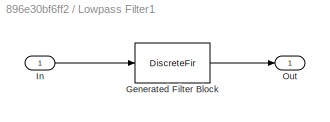
BLOCK [SubSystem] Lowpass Filter1
  CopyFcn = fdesignblkfcn(gcbh, {'CopyFcn'});
  DialogController = fdesignblkfcn
  InitFcn = fdesignblkfcn(gcbh, {'InitFcn'});
  Ports = [1, 1]
  RequestExecContextInheritance = off
  UserDataPersistent = on
BLOCK [DiscreteFir] Lowpass Filter1/Generated Filter Block
  Coefficients = [0.00063683669333396554 0.00035165891337100331 0.00044023467212753978 0.00053661980737771319 0.0006392251234450092 0.0007459190232921391 0.00085444442265150168 0.0009624316197290911 0.0010665630467000687 0.0011623320796724636 0.0012460535941313145 0.0013152298549243858 0.0013629200504256772 0.0013867597063022972 0.0013812150368208021 0.0013424766279015051 0.0012662471663499265 0.001148746820811748...<+2799ch>
  InputProcessing = Columns as channels (frame based)
  Ports = [1, 1]
  Tag = BlockMethodSubSystem
BLOCK [Inport] Lowpass Filter1/In
  IconDisplay = Port number
BLOCK [Outport] Lowpass Filter1/Out
  IconDisplay = Port number
BLOCK [Product] Product1
  InputSameDT = off
  OutDataTypeStr = Inherit: Inherit via internal rule
  Ports = [2, 1]
  RndMeth = Floor
  SampleTime = 1/32000
  SaturateOnIntegerOverflow = off
BLOCK [Product] Product2
  InputSameDT = off
  OutDataTypeStr = Inherit: Inherit via internal rule
  Ports = [2, 1]
  RndMeth = Floor
  SampleTime = 1/32000
  SaturateOnIntegerOverflow = off
BLOCK [Product] Product3
  InputSameDT = off
  OutDataTypeStr = Inherit: Inherit via internal rule
  Ports = [2, 1]
  RndMeth = Floor
  SampleTime = 1/32000
  SaturateOnIntegerOverflow = off
BLOCK [Product] Product4
  InputSameDT = off
  OutDataTypeStr = Inherit: Inherit via internal rule
  Ports = [2, 1]
  RndMeth = Floor
  SampleTime = 1/32000
  SaturateOnIntegerOverflow = off
BLOCK [Reference] Random Integer Generator  REF=commrandsrc2/Random Integer
Generator
  Ports = [0, 1]
  SourceBlock = commrandsrc2/Random Integer\nGenerator
  SourceType = Random Integer Generator
  Ts = 1
  frameBased = off
  mul = 16
  orient = off
  outDataType = uint16
  sampPerFrame = 1
  seed = 37
BLOCK [Reference] Rectangular QAM Modulator Baseband  REF=commdigbbndam3/Rectangular QAM
Modulator
Baseband
  AvgPow = 1
  Enc = Gray
  InType = Integer
  M = 16
  Mapping = [0:15]
  MinDist = 2
  PeakPow = 1
  Ph = 0
  Ports = [1, 1]
  PowType = Min. distance between symbols
  SourceBlock = commdigbbndam3/Rectangular QAM\nModulator\nBaseband
  SourceType = Rectangular QAM Modulator Baseband
  outDtype = double
  outFracLen = 15
  outFracLenMode = Best precision
  outUDDataType = sfix(16)
  outWordLen = 16
BLOCK [Scope] Scope
  Floating = off
  NumInputPorts = 1
  Ports = [1]
  ShowLegends = off
  ZoomMode = xonly
BLOCK [Scope] Scope1
  Floating = off
  NumInputPorts = 1
  Ports = [1]
  SaveName = ScopeData1
  ShowLegends = off
  ZoomMode = xonly
BLOCK [Scope] Scope10
  Floating = off
  NumInputPorts = 1
  Ports = [1]
  SaveName = ScopeData10
  ShowLegends = off
  ZoomMode = xonly
BLOCK [Scope] Scope11
  Floating = off
  NumInputPorts = 1
  Ports = [1]
  SaveName = ScopeData11
  ShowLegends = off
  ZoomMode = xonly
BLOCK [Scope] Scope2
  Floating = off
  NumInputPorts = 1
  Ports = [1]
  SaveName = ScopeData2
  ShowLegends = off
  ZoomMode = xonly
BLOCK [Scope] Scope3
  Floating = off
  NumInputPorts = 1
  Ports = [1]
  SaveName = ScopeData3
  ShowLegends = off
BLOCK [Scope] Scope4
  Floating = off
  NumInputPorts = 1
  Ports = [1]
  SaveName = ScopeData4
  ShowLegends = off
  ZoomMode = xonly
BLOCK [Scope] Scope5
  Floating = off
  NumInputPorts = 1
  Ports = [1]
  SaveName = ScopeData5
  ShowLegends = off
  ZoomMode = xonly
BLOCK [Scope] Scope6
  Floating = off
  NumInputPorts = 1
  Ports = [1]
  SaveName = ScopeData6
  ShowLegends = off
BLOCK [Scope] Scope7
  Floating = off
  NumInputPorts = 1
  Ports = [1]
  SaveName = ScopeData7
  ShowLegends = off
  ZoomMode = xonly
BLOCK [Scope] Scope8
  Floating = off
  NumInputPorts = 1
  Ports = [1]
  SaveName = ScopeData8
  ShowLegends = off
  ZoomMode = xonly
BLOCK [Scope] Scope9
  Floating = off
  NumInputPorts = 1
  Ports = [1]
  SaveName = ScopeData9
  ShowLegends = off
  ZoomMode = xonly
BLOCK [Sin] Sine Wave1
  Frequency = 1000*2*pi
  Phase = pi
  Ports = [0, 1]
  SampleTime = 0
BLOCK [Sin] Sine Wave2
  Frequency = 1000*2*pi
  Phase = pi/2
  Ports = [0, 1]
  SampleTime = 0
BLOCK [Sin] Sine Wave3
  Frequency = 1000*2*pi
  Phase = pi/2
  Ports = [0, 1]
  SampleTime = 0
BLOCK [Sin] Sine Wave4
  Amplitude = 1.5
  Frequency = 1000*2*pi
  Phase = pi+(pi/20)
  Ports = [0, 1]
  SampleTime = 0
NET AWGN Channel:1 -> Product3:2, Product4:1, Scope9:1
NET Add:1 -> AWGN Channel:1, Scope2:1
LINE Complex to Real-Imag:1 -> Product1:2
LINE Complex to Real-Imag:2 -> Product2:1
LINE Lowpass Filter1:1 -> Scope6:1
LINE Lowpass Filter:1 -> Scope3:1
NET Product1:1 -> Add:1, Scope10:1
NET Product2:1 -> Add:2, Scope11:1
NET Product3:1 -> Lowpass Filter:1, Scope4:1
NET Product4:1 -> Lowpass Filter1:1, Scope7:1
LINE Random Integer Generator:1 -> Rectangular QAM Modulator Baseband:1
LINE Rectangular QAM Modulator Baseband:1 -> Complex to Real-Imag:1
NET Sine Wave1:1 -> Product2:2, Scope1:1
NET Sine Wave2:1 -> Product3:1, Scope5:1
NET Sine Wave3:1 -> Product1:1, Scope:1
NET Sine Wave4:1 -> Product4:2, Scope8:1
note: NET lines group one-source signal fan-out (src -> all destinations, sorted); 1:1 wires keep LINE
